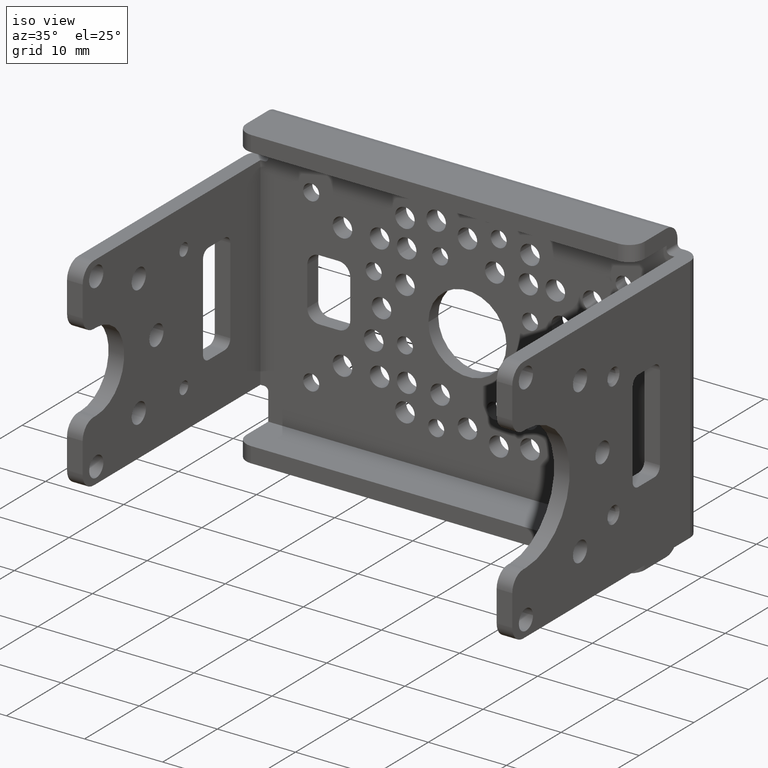
[diagram: clean part render]
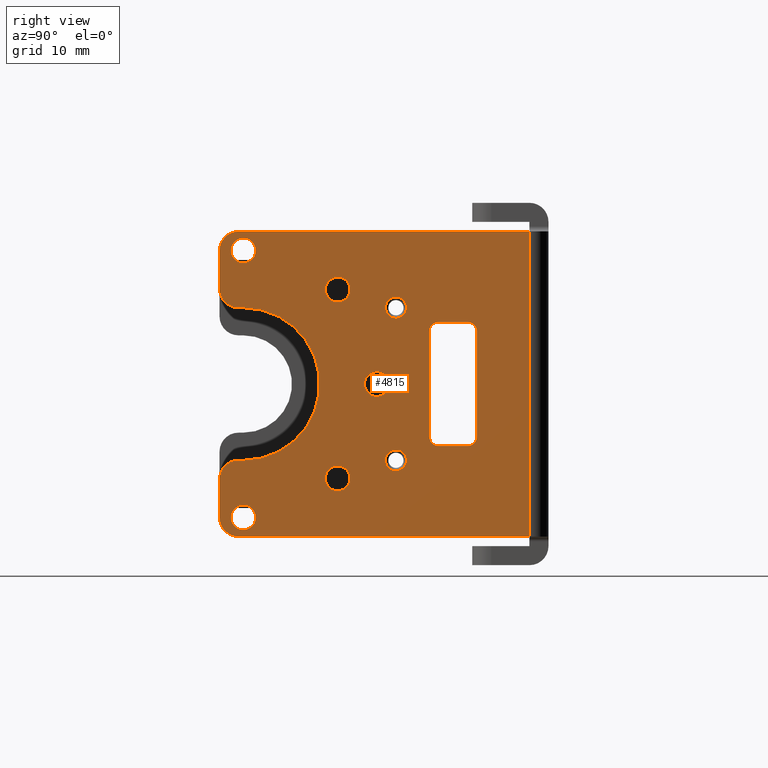
[diagram: tour spotlight — one face highlighted and labeled with its STEP entity id]
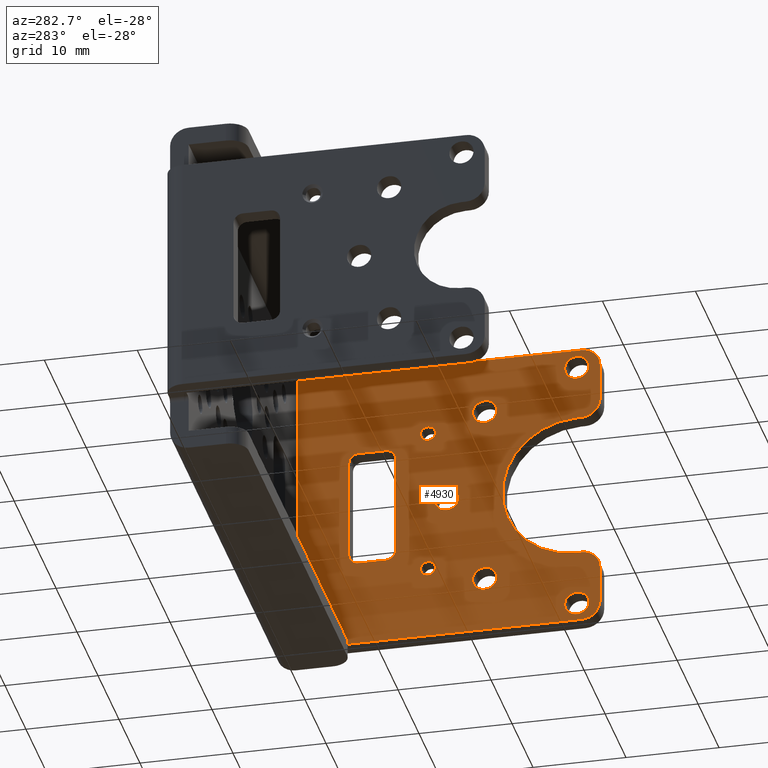
[diagram: tour spotlight — one face highlighted and labeled with its STEP entity id]
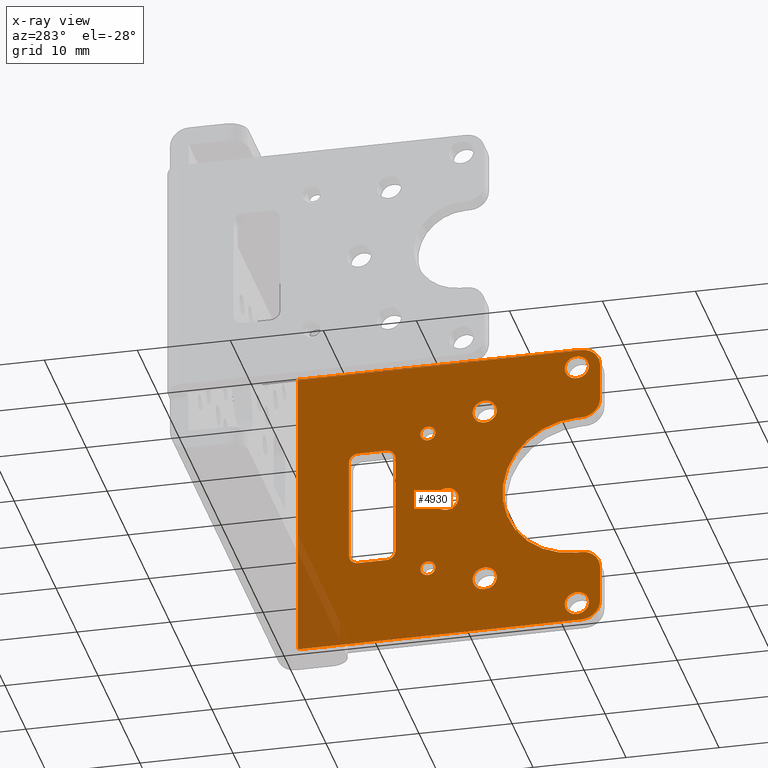
[diagram: x-ray of the same camera — body ghosted, this tour face saturated]
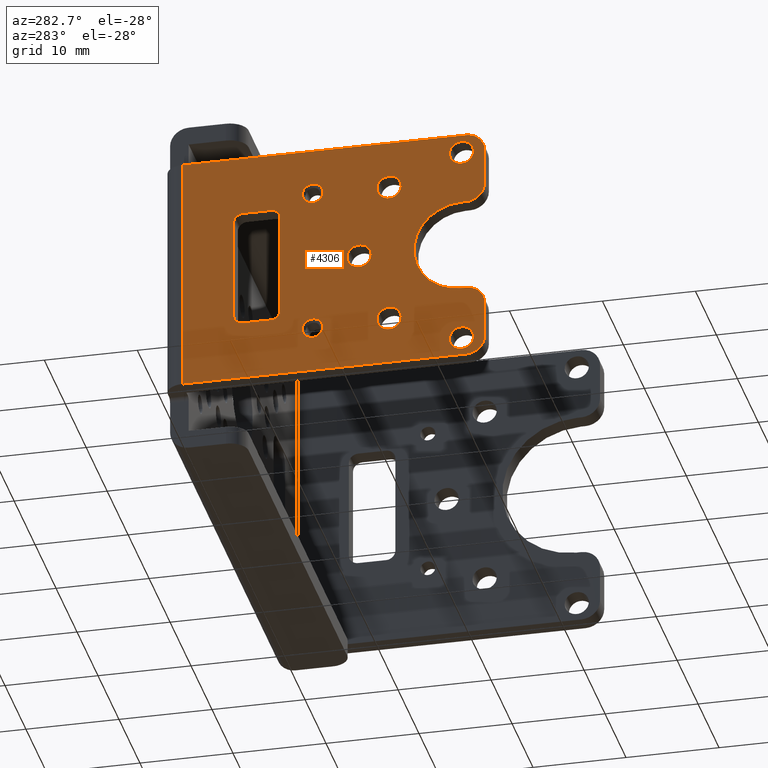
[diagram: tour spotlight — one face highlighted and labeled with its STEP entity id]
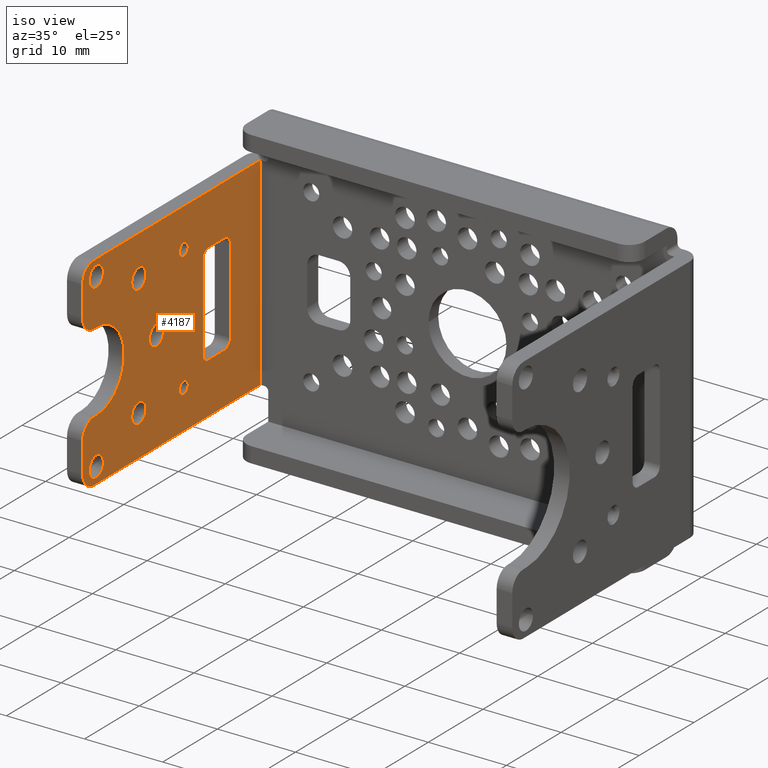
[diagram: tour spotlight — one face highlighted and labeled with its STEP entity id]
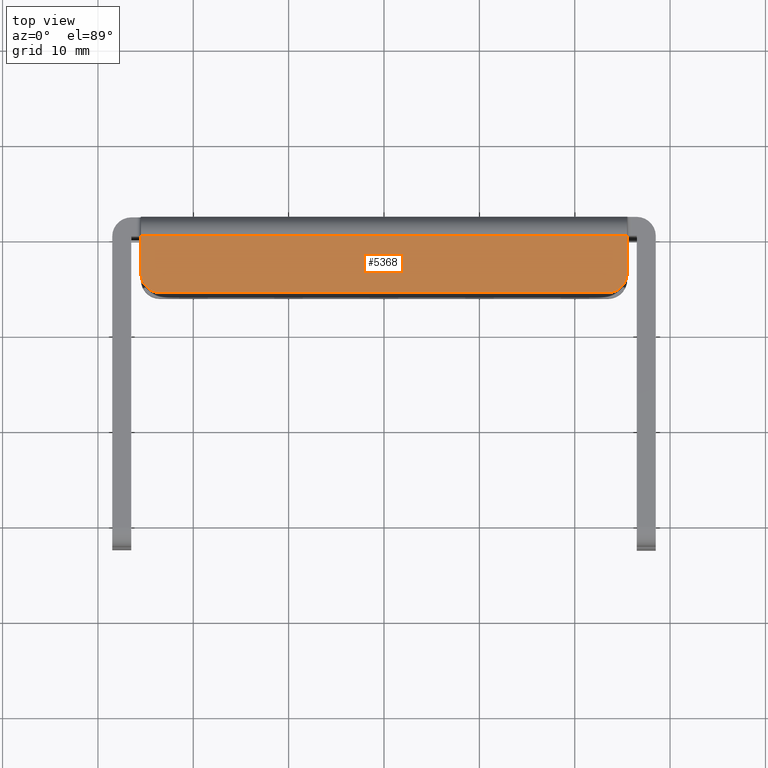
[diagram: tour spotlight — one face highlighted and labeled with its STEP entity id]
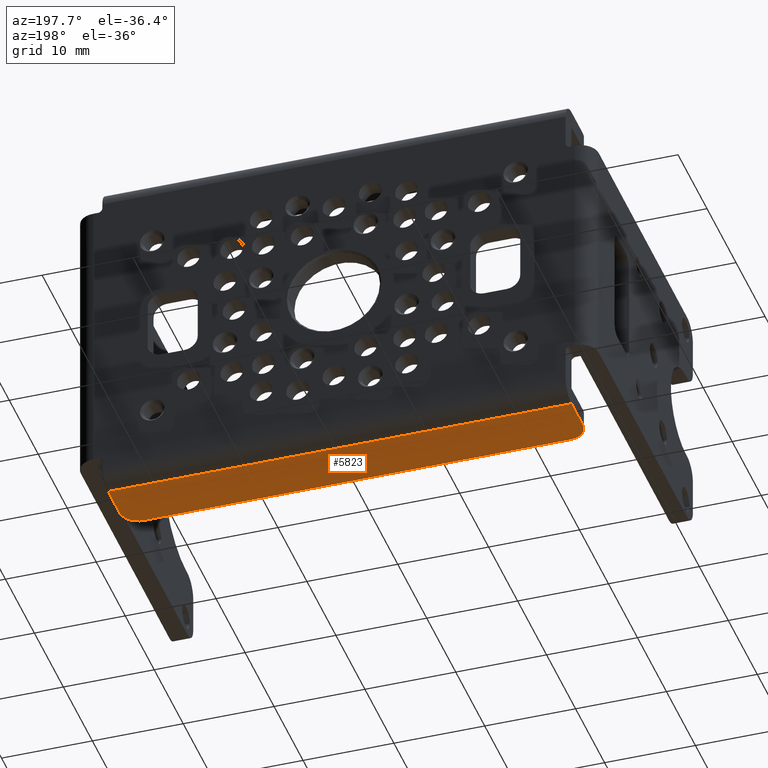
[diagram: tour spotlight — one face highlighted and labeled with its STEP entity id]
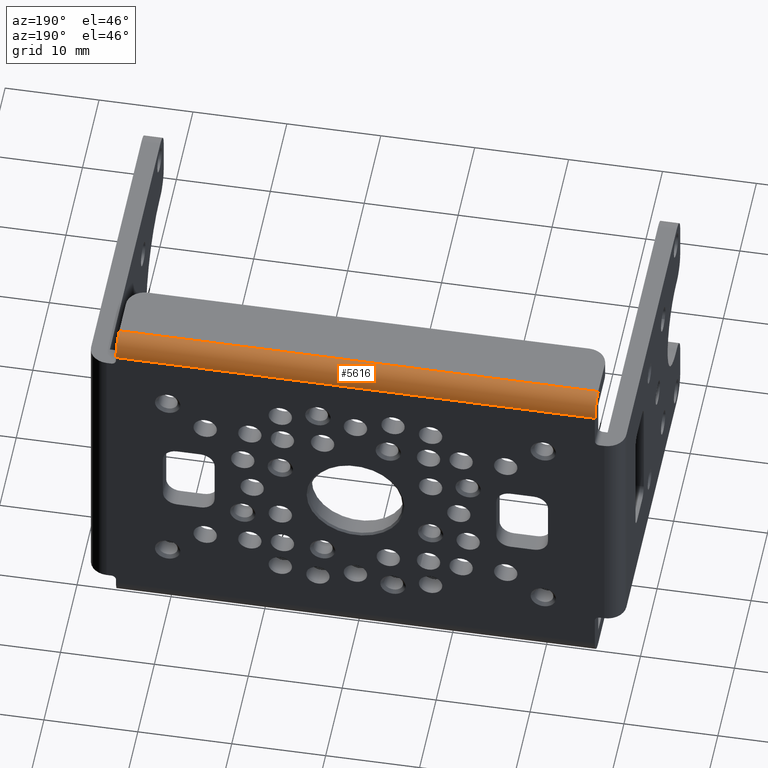
[diagram: tour spotlight — one face highlighted and labeled with its STEP entity id]
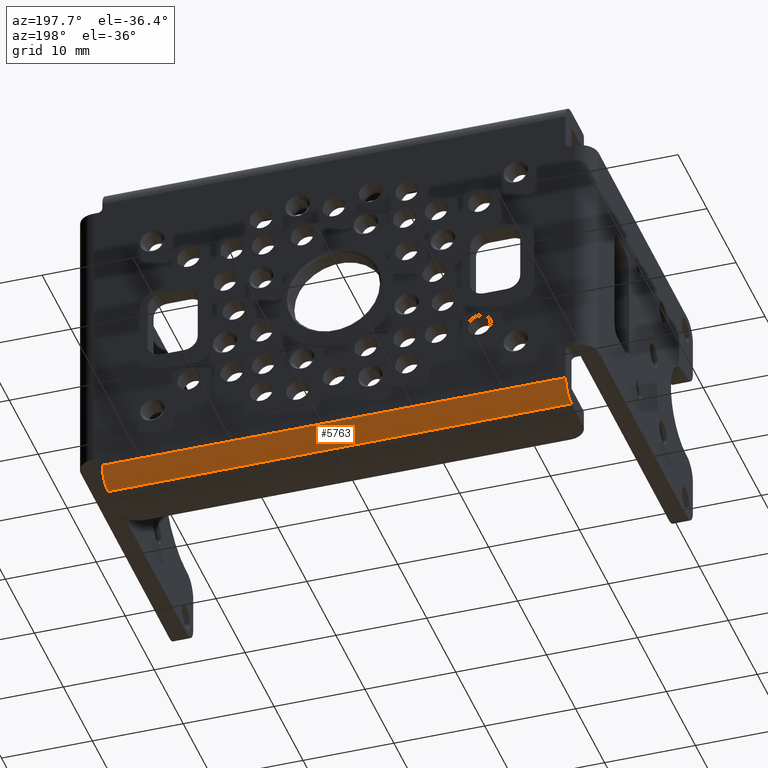
[diagram: tour spotlight — one face highlighted and labeled with its STEP entity id]
A machine part: a face-by-face anatomy tour. The part has 274 B-rep faces; the first image is the clean iso view, then the 8 largest visible faces are spotlighted one at a time (largest first), each with its STEP entity span.

Face 1 — right view, entity #4815. In plain terms, the highlighted planar face has unit normal (-1, 0, 0).
Definition (entity closure, byte-faithful):
#1255=DIRECTION('',(0.E0,-1.E0,0.E0));
#1256=VECTOR('',#1255,3.05E1);
#1257=CARTESIAN_POINT('',(2.85E1,0.E0,-1.6E1));
#1258=LINE('',#1257,#1256);
#1267=CARTESIAN_POINT('',(2.85E1,-3.E1,1.4E1));
#1268=DIRECTION('',(-1.E0,0.E0,0.E0));
#1269=DIRECTION('',(0.E0,-1.E0,0.E0));
#1270=AXIS2_PLACEMENT_3D('',#1267,#1268,#1269);
#1272=CARTESIAN_POINT('',(2.85E1,-3.E1,1.4E1));
#1273=DIRECTION('',(-1.E0,0.E0,0.E0));
#1274=DIRECTION('',(0.E0,1.E0,0.E0));
#1275=AXIS2_PLACEMENT_3D('',#1272,#1273,#1274);
#1277=CARTESIAN_POINT('',(2.85E1,-3.E1,-1.4E1));
#1278=DIRECTION('',(-1.E0,0.E0,0.E0));
#1279=DIRECTION('',(0.E0,1.E0,0.E0));
#1280=AXIS2_PLACEMENT_3D('',#1277,#1278,#1279);
#1282=CARTESIAN_POINT('',(2.85E1,-3.E1,-1.4E1));
#1283=DIRECTION('',(-1.E0,0.E0,0.E0));
#1284=DIRECTION('',(0.E0,-1.E0,0.E0));
#1285=AXIS2_PLACEMENT_3D('',#1282,#1283,#1284);
#1287=CARTESIAN_POINT('',(2.85E1,-2.010050506339E1,-9.899494936612E0));
#1288=DIRECTION('',(-1.E0,0.E0,0.E0));
#1289=DIRECTION('',(0.E0,7.071067811865E-1,7.071067811865E-1));
#1290=AXIS2_PLACEMENT_3D('',#1287,#1288,#1289);
#1292=CARTESIAN_POINT('',(2.85E1,-2.010050506339E1,-9.899494936612E0));
#1293=DIRECTION('',(-1.E0,0.E0,0.E0));
#1294=DIRECTION('',(0.E0,-7.071067811865E-1,-7.071067811865E-1));
#1295=AXIS2_PLACEMENT_3D('',#1292,#1293,#1294);
#1297=CARTESIAN_POINT('',(2.85E1,-1.6E1,0.E0));
#1298=DIRECTION('',(-1.E0,0.E0,0.E0));
#1299=DIRECTION('',(0.E0,0.E0,1.E0));
#1300=AXIS2_PLACEMENT_3D('',#1297,#1298,#1299);
#1302=CARTESIAN_POINT('',(2.85E1,-1.6E1,0.E0));
#1303=DIRECTION('',(-1.E0,0.E0,0.E0));
#1304=DIRECTION('',(0.E0,0.E0,-1.E0));
#1305=AXIS2_PLACEMENT_3D('',#1302,#1303,#1304);
#1307=CARTESIAN_POINT('',(2.85E1,-2.010050506339E1,9.899494936612E0));
#1308=DIRECTION('',(-1.E0,0.E0,0.E0));
#1309=DIRECTION('',(0.E0,-7.071067811866E-1,7.071067811865E-1));
#1310=AXIS2_PLACEMENT_3D('',#1307,#1308,#1309);
#1312=CARTESIAN_POINT('',(2.85E1,-2.010050506339E1,9.899494936612E0));
#1313=DIRECTION('',(-1.E0,0.E0,0.E0));
#1314=DIRECTION('',(0.E0,7.071067811865E-1,-7.071067811865E-1));
#1315=AXIS2_PLACEMENT_3D('',#1312,#1313,#1314);
#1317=DIRECTION('',(0.E0,0.E0,1.E0));
#1318=VECTOR('',#1317,1.1E1);
#1319=CARTESIAN_POINT('',(2.85E1,-1.05E1,-5.5E0));
#1320=LINE('',#1319,#1318);
#1321=DIRECTION('',(0.E0,-1.E0,0.E0));
#1322=VECTOR('',#1321,3.E0);
#1323=CARTESIAN_POINT('',(2.85E1,-6.5E0,-6.5E0));
#1324=LINE('',#1323,#1322);
#1325=DIRECTION('',(0.E0,0.E0,-1.E0));
#1326=VECTOR('',#1325,1.1E1);
#1327=CARTESIAN_POINT('',(2.85E1,-5.5E0,5.5E0));
#1328=LINE('',#1327,#1326);
#1329=DIRECTION('',(0.E0,1.E0,0.E0));
#1330=VECTOR('',#1329,3.E0);
#1331=CARTESIAN_POINT('',(2.85E1,-9.5E0,6.5E0));
#1332=LINE('',#1331,#1330);
#1333=CARTESIAN_POINT('',(2.85E1,-3.05E1,-1.E1));
#1334=DIRECTION('',(1.E0,0.E0,0.E0));
#1335=DIRECTION('',(0.E0,0.E0,1.E0));
#1336=AXIS2_PLACEMENT_3D('',#1333,#1334,#1335);
#1338=DIRECTION('',(0.E0,1.E0,0.E0));
#1339=VECTOR('',#1338,5.E-1);
#1340=CARTESIAN_POINT('',(2.85E1,-3.05E1,-8.E0));
#1341=LINE('',#1340,#1339);
#1342=CARTESIAN_POINT('',(2.85E1,-3.E1,0.E0));
#1343=DIRECTION('',(1.E0,0.E0,0.E0));
#1344=DIRECTION('',(0.E0,0.E0,-1.E0));
#1345=AXIS2_PLACEMENT_3D('',#1342,#1343,#1344);
#1347=DIRECTION('',(0.E0,1.E0,0.E0));
#1348=VECTOR('',#1347,5.E-1);
#1349=CARTESIAN_POINT('',(2.85E1,-3.05E1,8.E0));
#1350=LINE('',#1349,#1348);
#1351=CARTESIAN_POINT('',(2.85E1,-3.05E1,1.E1));
#1352=DIRECTION('',(1.E0,0.E0,0.E0));
#1353=DIRECTION('',(0.E0,-1.E0,0.E0));
#1354=AXIS2_PLACEMENT_3D('',#1351,#1352,#1353);
#1356=CARTESIAN_POINT('',(2.85E1,-3.05E1,1.4E1));
#1357=DIRECTION('',(1.E0,0.E0,0.E0));
#1358=DIRECTION('',(0.E0,0.E0,1.E0));
#1359=AXIS2_PLACEMENT_3D('',#1356,#1357,#1358);
#1361=DIRECTION('',(0.E0,0.E0,1.E0));
#1362=VECTOR('',#1361,3.2E1);
#1363=CARTESIAN_POINT('',(2.85E1,0.E0,-1.6E1));
#1364=LINE('',#1363,#1362);
#1365=CARTESIAN_POINT('',(2.85E1,-3.05E1,-1.4E1));
#1366=DIRECTION('',(1.E0,0.E0,0.E0));
#1367=DIRECTION('',(0.E0,-1.E0,0.E0));
#1368=AXIS2_PLACEMENT_3D('',#1365,#1366,#1367);
#1370=CARTESIAN_POINT('',(2.85E1,-1.4E1,-8.E0));
#1371=DIRECTION('',(1.E0,0.E0,0.E0));
#1372=DIRECTION('',(0.E0,-1.E0,0.E0));
#1373=AXIS2_PLACEMENT_3D('',#1370,#1371,#1372);
#1375=CARTESIAN_POINT('',(2.85E1,-1.4E1,-8.E0));
#1376=DIRECTION('',(1.E0,0.E0,0.E0));
#1377=DIRECTION('',(0.E0,1.E0,0.E0));
#1378=AXIS2_PLACEMENT_3D('',#1375,#1376,#1377);
#1380=CARTESIAN_POINT('',(2.85E1,-1.4E1,8.E0));
#1381=DIRECTION('',(-1.E0,0.E0,0.E0));
#1382=DIRECTION('',(0.E0,-1.E0,0.E0));
#1383=AXIS2_PLACEMENT_3D('',#1380,#1381,#1382);
#1385=CARTESIAN_POINT('',(2.85E1,-1.4E1,8.E0));
#1386=DIRECTION('',(-1.E0,0.E0,0.E0));
#1387=DIRECTION('',(0.E0,1.E0,0.E0));
#1388=AXIS2_PLACEMENT_3D('',#1385,#1386,#1387);
#1566=CARTESIAN_POINT('',(2.85E1,-9.5E0,-5.5E0));
#1567=DIRECTION('',(-1.E0,0.E0,0.E0));
#1568=DIRECTION('',(0.E0,0.E0,-1.E0));
#1569=AXIS2_PLACEMENT_3D('',#1566,#1567,#1568);
#1584=CARTESIAN_POINT('',(2.85E1,-9.5E0,5.5E0));
#1585=DIRECTION('',(-1.E0,0.E0,0.E0));
#1586=DIRECTION('',(0.E0,-1.E0,0.E0));
#1587=AXIS2_PLACEMENT_3D('',#1584,#1585,#1586);
#1602=CARTESIAN_POINT('',(2.85E1,-6.5E0,5.5E0));
#1603=DIRECTION('',(-1.E0,0.E0,0.E0));
#1604=DIRECTION('',(0.E0,0.E0,1.E0));
#1605=AXIS2_PLACEMENT_3D('',#1602,#1603,#1604);
#1620=CARTESIAN_POINT('',(2.85E1,-6.5E0,-5.5E0));
#1621=DIRECTION('',(-1.E0,0.E0,0.E0));
#1622=DIRECTION('',(0.E0,1.E0,0.E0));
#1623=AXIS2_PLACEMENT_3D('',#1620,#1621,#1622);
#1625=DIRECTION('',(0.E0,-1.E0,0.E0));
#1626=VECTOR('',#1625,3.05E1);
#1627=CARTESIAN_POINT('',(2.85E1,0.E0,1.6E1));
#1628=LINE('',#1627,#1626);
#1645=DIRECTION('',(0.E0,0.E0,1.E0));
#1646=VECTOR('',#1645,4.E0);
#1647=CARTESIAN_POINT('',(2.85E1,-3.25E1,1.E1));
#1648=LINE('',#1647,#1646);
#1677=DIRECTION('',(0.E0,0.E0,1.E0));
#1678=VECTOR('',#1677,4.E0);
#1679=CARTESIAN_POINT('',(2.85E1,-3.25E1,-1.4E1));
#1680=LINE('',#1679,#1678);
#2955=CARTESIAN_POINT('',(2.85E1,0.E0,-1.6E1));
#2956=CARTESIAN_POINT('',(2.85E1,0.E0,1.6E1));
#2957=VERTEX_POINT('',#2955);
#2958=VERTEX_POINT('',#2956);
#2987=CARTESIAN_POINT('',(2.85E1,-3.13E1,1.4E1));
#2988=CARTESIAN_POINT('',(2.85E1,-2.87E1,1.4E1));
#2989=VERTEX_POINT('',#2987);
#2990=VERTEX_POINT('',#2988);
#3075=CARTESIAN_POINT('',(2.85E1,-3.25E1,-1.4E1));
#3076=CARTESIAN_POINT('',(2.85E1,-3.05E1,-1.6E1));
#3077=VERTEX_POINT('',#3075);
#3078=VERTEX_POINT('',#3076);
#3083=CARTESIAN_POINT('',(2.85E1,-3.05E1,1.6E1));
#3084=VERTEX_POINT('',#3083);
#3120=CARTESIAN_POINT('',(2.85E1,-9.5E0,6.5E0));
#3122=VERTEX_POINT('',#3120);
#3124=CARTESIAN_POINT('',(2.85E1,-1.05E1,5.5E0));
#3126=VERTEX_POINT('',#3124);
#3128=CARTESIAN_POINT('',(2.85E1,-1.05E1,-5.5E0));
#3130=VERTEX_POINT('',#3128);
#3132=CARTESIAN_POINT('',(2.85E1,-9.5E0,-6.5E0));
#3134=VERTEX_POINT('',#3132);
#3136=CARTESIAN_POINT('',(2.85E1,-6.5E0,-6.5E0));
#3138=VERTEX_POINT('',#3136);
#3140=CARTESIAN_POINT('',(2.85E1,-5.5E0,-5.5E0));
#3142=VERTEX_POINT('',#3140);
#3144=CARTESIAN_POINT('',(2.85E1,-5.5E0,5.5E0));
#3146=VERTEX_POINT('',#3144);
#3148=CARTESIAN_POINT('',(2.85E1,-6.5E0,6.5E0));
#3150=VERTEX_POINT('',#3148);
#3203=CARTESIAN_POINT('',(2.85E1,-3.25E1,1.4E1));
#3204=VERTEX_POINT('',#3203);
#3211=CARTESIAN_POINT('',(2.85E1,-3.25E1,-1.E1));
#3212=VERTEX_POINT('',#3211);
#3213=CARTESIAN_POINT('',(2.85E1,-3.25E1,1.E1));
#3214=VERTEX_POINT('',#3213);
#3219=CARTESIAN_POINT('',(2.85E1,-3.E1,-8.E0));
#3220=CARTESIAN_POINT('',(2.85E1,-3.E1,8.E0));
#3221=VERTEX_POINT('',#3219);
#3222=VERTEX_POINT('',#3220);
#3225=CARTESIAN_POINT('',(2.85E1,-3.05E1,8.E0));
#3226=VERTEX_POINT('',#3225);
#3229=CARTESIAN_POINT('',(2.85E1,-3.05E1,-8.E0));
#3230=VERTEX_POINT('',#3229);
#3295=CARTESIAN_POINT('',(2.85E1,-2.87E1,-1.4E1));
#3296=CARTESIAN_POINT('',(2.85E1,-3.13E1,-1.4E1));
#3297=VERTEX_POINT('',#3295);
#3298=VERTEX_POINT('',#3296);
#3303=CARTESIAN_POINT('',(2.85E1,-1.918126624785E1,-8.980256121069E0));
#3304=CARTESIAN_POINT('',(2.85E1,-2.101974387893E1,-1.081873375215E1));
#3305=VERTEX_POINT('',#3303);
#3306=VERTEX_POINT('',#3304);
#3311=CARTESIAN_POINT('',(2.85E1,-2.101974387893E1,1.081873375215E1));
#3312=CARTESIAN_POINT('',(2.85E1,-1.918126624785E1,8.980256121069E0));
#3313=VERTEX_POINT('',#3311);
#3314=VERTEX_POINT('',#3312);
#3319=CARTESIAN_POINT('',(2.85E1,-1.6E1,1.3E0));
#3320=CARTESIAN_POINT('',(2.85E1,-1.6E1,-1.3E0));
#3321=VERTEX_POINT('',#3319);
#3322=VERTEX_POINT('',#3320);
#3359=CARTESIAN_POINT('',(2.85E1,-1.51E1,-8.E0));
#3360=CARTESIAN_POINT('',(2.85E1,-1.29E1,-8.E0));
#3361=VERTEX_POINT('',#3359);
#3362=VERTEX_POINT('',#3360);
#3371=CARTESIAN_POINT('',(2.85E1,-1.51E1,8.E0));
#3372=VERTEX_POINT('',#3371);
#3373=CARTESIAN_POINT('',(2.85E1,-1.29E1,8.E0));
#3374=VERTEX_POINT('',#3373);
#4726=CARTESIAN_POINT('',(2.85E1,0.E0,-1.6E1));
#4727=DIRECTION('',(-1.E0,0.E0,0.E0));
#4728=DIRECTION('',(0.E0,-1.E0,0.E0));
#4729=AXIS2_PLACEMENT_3D('',#4726,#4727,#4728);
#4730=PLANE('',#4729);
#4732=ORIENTED_EDGE('',*,*,#4731,.T.);
#4734=ORIENTED_EDGE('',*,*,#4733,.F.);
#4736=ORIENTED_EDGE('',*,*,#4735,.T.);
#4738=ORIENTED_EDGE('',*,*,#4737,.T.);
#4740=ORIENTED_EDGE('',*,*,#4739,.F.);
#4742=ORIENTED_EDGE('',*,*,#4741,.F.);
#4744=ORIENTED_EDGE('',*,*,#4743,.T.);
#4746=ORIENTED_EDGE('',*,*,#4745,.F.);
#4748=ORIENTED_EDGE('',*,*,#4747,.F.);
#4750=ORIENTED_EDGE('',*,*,#4749,.F.);
#4751=ORIENTED_EDGE('',*,*,#4703,.T.);
#4752=ORIENTED_EDGE('',*,*,#4716,.F.);
#4753=EDGE_LOOP('',(#4732,#4734,#4736,#4738,#4740,#4742,#4744,#4746,#4748,#4750,
#4751,#4752));
#4754=FACE_OUTER_BOUND('',#4753,.F.);
#4756=ORIENTED_EDGE('',*,*,#4755,.F.);
#4758=ORIENTED_EDGE('',*,*,#4757,.F.);
#4759=EDGE_LOOP('',(#4756,#4758));
#4760=FACE_BOUND('',#4759,.F.);
#4762=ORIENTED_EDGE('',*,*,#4761,.F.);
#4764=ORIENTED_EDGE('',*,*,#4763,.F.);
#4765=EDGE_LOOP('',(#4762,#4764));
#4766=FACE_BOUND('',#4765,.F.);
#4768=ORIENTED_EDGE('',*,*,#4767,.F.);
#4770=ORIENTED_EDGE('',*,*,#4769,.F.);
#4771=EDGE_LOOP('',(#4768,#4770));
#4772=FACE_BOUND('',#4771,.F.);
#4774=ORIENTED_EDGE('',*,*,#4773,.F.);
#4776=ORIENTED_EDGE('',*,*,#4775,.F.);
#4777=EDGE_LOOP('',(#4774,#4776));
#4778=FACE_BOUND('',#4777,.F.);
#4780=ORIENTED_EDGE('',*,*,#4779,.F.);
#4782=ORIENTED_EDGE('',*,*,#4781,.F.);
#4784=ORIENTED_EDGE('',*,*,#4783,.F.);
#4786=ORIENTED_EDGE('',*,*,#4785,.F.);
#4788=ORIENTED_EDGE('',*,*,#4787,.F.);
#4790=ORIENTED_EDGE('',*,*,#4789,.F.);
#4792=ORIENTED_EDGE('',*,*,#4791,.F.);
#4794=ORIENTED_EDGE('',*,*,#4793,.F.);
#4795=EDGE_LOOP('',(#4780,#4782,#4784,#4786,#4788,#4790,#4792,#4794));
#4796=FACE_BOUND('',#4795,.F.);
#4798=ORIENTED_EDGE('',*,*,#4797,.F.);
#4800=ORIENTED_EDGE('',*,*,#4799,.F.);
#4801=EDGE_LOOP('',(#4798,#4800));
#4802=FACE_BOUND('',#4801,.F.);
#4804=ORIENTED_EDGE('',*,*,#4803,.T.);
#4806=ORIENTED_EDGE('',*,*,#4805,.T.);
#4807=EDGE_LOOP('',(#4804,#4806));
#4808=FACE_BOUND('',#4807,.F.);
#4810=ORIENTED_EDGE('',*,*,#4809,.F.);
#4812=ORIENTED_EDGE('',*,*,#4811,.F.);
#4813=EDGE_LOOP('',(#4810,#4812));
#4814=FACE_BOUND('',#4813,.F.);
#4815=ADVANCED_FACE('',(#4754,#4760,#4766,#4772,#4778,#4796,#4802,#4808,#4814),
#4730,.F.);
#1271=CIRCLE('',#1270,1.3E0);
#1276=CIRCLE('',#1275,1.3E0);
#1281=CIRCLE('',#1280,1.3E0);
#1286=CIRCLE('',#1285,1.3E0);
#1291=CIRCLE('',#1290,1.3E0);
#1296=CIRCLE('',#1295,1.3E0);
#1301=CIRCLE('',#1300,1.3E0);
#1306=CIRCLE('',#1305,1.3E0);
#1311=CIRCLE('',#1310,1.3E0);
#1316=CIRCLE('',#1315,1.3E0);
#1337=CIRCLE('',#1336,2.E0);
#1346=CIRCLE('',#1345,8.E0);
#1355=CIRCLE('',#1354,2.E0);
#1360=CIRCLE('',#1359,2.E0);
#1369=CIRCLE('',#1368,2.E0);
#1374=CIRCLE('',#1373,1.1E0);
#1379=CIRCLE('',#1378,1.1E0);
#1384=CIRCLE('',#1383,1.1E0);
#1389=CIRCLE('',#1388,1.1E0);
#1570=CIRCLE('',#1569,1.E0);
#1588=CIRCLE('',#1587,1.E0);
#1606=CIRCLE('',#1605,1.E0);
#1624=CIRCLE('',#1623,1.E0);
#4703=EDGE_CURVE('',#2957,#3078,#1258,.T.);
#4716=EDGE_CURVE('',#3077,#3078,#1369,.T.);
#4731=EDGE_CURVE('',#3077,#3212,#1680,.T.);
#4733=EDGE_CURVE('',#3230,#3212,#1337,.T.);
#4735=EDGE_CURVE('',#3230,#3221,#1341,.T.);
#4737=EDGE_CURVE('',#3221,#3222,#1346,.T.);
#4739=EDGE_CURVE('',#3226,#3222,#1350,.T.);
#4741=EDGE_CURVE('',#3214,#3226,#1355,.T.);
#4743=EDGE_CURVE('',#3214,#3204,#1648,.T.);
#4745=EDGE_CURVE('',#3084,#3204,#1360,.T.);
#4747=EDGE_CURVE('',#2958,#3084,#1628,.T.);
#4749=EDGE_CURVE('',#2957,#2958,#1364,.T.);
#4755=EDGE_CURVE('',#3297,#3298,#1281,.T.);
#4757=EDGE_CURVE('',#3298,#3297,#1286,.T.);
#4761=EDGE_CURVE('',#3305,#3306,#1291,.T.);
#4763=EDGE_CURVE('',#3306,#3305,#1296,.T.);
#4767=EDGE_CURVE('',#3321,#3322,#1301,.T.);
#4769=EDGE_CURVE('',#3322,#3321,#1306,.T.);
#4773=EDGE_CURVE('',#3313,#3314,#1311,.T.);
#4775=EDGE_CURVE('',#3314,#3313,#1316,.T.);
#4779=EDGE_CURVE('',#3130,#3126,#1320,.T.);
#4781=EDGE_CURVE('',#3134,#3130,#1570,.T.);
#4783=EDGE_CURVE('',#3138,#3134,#1324,.T.);
#4785=EDGE_CURVE('',#3142,#3138,#1624,.T.);
#4787=EDGE_CURVE('',#3146,#3142,#1328,.T.);
#4789=EDGE_CURVE('',#3150,#3146,#1606,.T.);
#4791=EDGE_CURVE('',#3122,#3150,#1332,.T.);
#4793=EDGE_CURVE('',#3126,#3122,#1588,.T.);
#4797=EDGE_CURVE('',#2989,#2990,#1271,.T.);
#4799=EDGE_CURVE('',#2990,#2989,#1276,.T.);
#4803=EDGE_CURVE('',#3361,#3362,#1374,.T.);
#4805=EDGE_CURVE('',#3362,#3361,#1379,.T.);
#4809=EDGE_CURVE('',#3372,#3374,#1384,.T.);
#4811=EDGE_CURVE('',#3374,#3372,#1389,.T.);

Face 2 — auxiliary view, entity #4930. An x-ray twin of the same camera follows (body ghosted, this face saturated) — the face is partly hidden behind the body. In plain terms, the highlighted planar face has unit normal (-1, 0, 0).
Definition (entity closure, byte-faithful):
#1263=DIRECTION('',(0.E0,-1.E0,0.E0));
#1264=VECTOR('',#1263,3.05E1);
#1265=CARTESIAN_POINT('',(2.65E1,0.E0,-1.6E1));
#1266=LINE('',#1265,#1264);
#1398=CARTESIAN_POINT('',(2.65E1,-3.E1,1.4E1));
#1399=DIRECTION('',(-1.E0,0.E0,0.E0));
#1400=DIRECTION('',(0.E0,-1.E0,0.E0));
#1401=AXIS2_PLACEMENT_3D('',#1398,#1399,#1400);
#1403=CARTESIAN_POINT('',(2.65E1,-3.E1,1.4E1));
#1404=DIRECTION('',(-1.E0,0.E0,0.E0));
#1405=DIRECTION('',(0.E0,1.E0,0.E0));
#1406=AXIS2_PLACEMENT_3D('',#1403,#1404,#1405);
#1408=CARTESIAN_POINT('',(2.65E1,-3.E1,-1.4E1));
#1409=DIRECTION('',(-1.E0,0.E0,0.E0));
#1410=DIRECTION('',(0.E0,1.E0,0.E0));
#1411=AXIS2_PLACEMENT_3D('',#1408,#1409,#1410);
#1413=CARTESIAN_POINT('',(2.65E1,-3.E1,-1.4E1));
#1414=DIRECTION('',(-1.E0,0.E0,0.E0));
#1415=DIRECTION('',(0.E0,-1.E0,0.E0));
#1416=AXIS2_PLACEMENT_3D('',#1413,#1414,#1415);
#1418=CARTESIAN_POINT('',(2.65E1,-2.010050506339E1,-9.899494936612E0));
#1419=DIRECTION('',(-1.E0,0.E0,0.E0));
#1420=DIRECTION('',(0.E0,7.071067811865E-1,7.071067811865E-1));
#1421=AXIS2_PLACEMENT_3D('',#1418,#1419,#1420);
#1423=CARTESIAN_POINT('',(2.65E1,-2.010050506339E1,-9.899494936612E0));
#1424=DIRECTION('',(-1.E0,0.E0,0.E0));
#1425=DIRECTION('',(0.E0,-7.071067811865E-1,-7.071067811865E-1));
#1426=AXIS2_PLACEMENT_3D('',#1423,#1424,#1425);
#1428=CARTESIAN_POINT('',(2.65E1,-1.6E1,0.E0));
#1429=DIRECTION('',(-1.E0,0.E0,0.E0));
#1430=DIRECTION('',(0.E0,0.E0,1.E0));
#1431=AXIS2_PLACEMENT_3D('',#1428,#1429,#1430);
#1433=CARTESIAN_POINT('',(2.65E1,-1.6E1,0.E0));
#1434=DIRECTION('',(-1.E0,0.E0,0.E0));
#1435=DIRECTION('',(0.E0,0.E0,-1.E0));
#1436=AXIS2_PLACEMENT_3D('',#1433,#1434,#1435);
#1438=CARTESIAN_POINT('',(2.65E1,-2.010050506339E1,9.899494936612E0));
#1439=DIRECTION('',(-1.E0,0.E0,0.E0));
#1440=DIRECTION('',(0.E0,-7.071067811866E-1,7.071067811865E-1));
#1441=AXIS2_PLACEMENT_3D('',#1438,#1439,#1440);
#1443=CARTESIAN_POINT('',(2.65E1,-2.010050506339E1,9.899494936612E0));
#1444=DIRECTION('',(-1.E0,0.E0,0.E0));
#1445=DIRECTION('',(0.E0,7.071067811865E-1,-7.071067811865E-1));
#1446=AXIS2_PLACEMENT_3D('',#1443,#1444,#1445);
#1448=DIRECTION('',(0.E0,-1.E0,0.E0));
#1449=VECTOR('',#1448,3.E0);
#1450=CARTESIAN_POINT('',(2.65E1,-6.5E0,-6.5E0));
#1451=LINE('',#1450,#1449);
#1452=DIRECTION('',(0.E0,0.E0,1.E0));
#1453=VECTOR('',#1452,1.1E1);
#1454=CARTESIAN_POINT('',(2.65E1,-1.05E1,-5.5E0));
#1455=LINE('',#1454,#1453);
#1456=DIRECTION('',(0.E0,1.E0,0.E0));
#1457=VECTOR('',#1456,3.E0);
#1458=CARTESIAN_POINT('',(2.65E1,-9.5E0,6.5E0));
#1459=LINE('',#1458,#1457);
#1460=DIRECTION('',(0.E0,0.E0,-1.E0));
#1461=VECTOR('',#1460,1.1E1);
#1462=CARTESIAN_POINT('',(2.65E1,-5.5E0,5.5E0));
#1463=LINE('',#1462,#1461);
#1464=DIRECTION('',(0.E0,0.E0,1.E0));
#1465=VECTOR('',#1464,3.2E1);
#1466=CARTESIAN_POINT('',(2.65E1,0.E0,-1.6E1));
#1467=LINE('',#1466,#1465);
#1468=CARTESIAN_POINT('',(2.65E1,-3.05E1,1.4E1));
#1469=DIRECTION('',(-1.E0,0.E0,0.E0));
#1470=DIRECTION('',(0.E0,-1.E0,0.E0));
#1471=AXIS2_PLACEMENT_3D('',#1468,#1469,#1470);
#1473=CARTESIAN_POINT('',(2.65E1,-3.05E1,1.E1));
#1474=DIRECTION('',(-1.E0,0.E0,0.E0));
#1475=DIRECTION('',(0.E0,0.E0,-1.E0));
#1476=AXIS2_PLACEMENT_3D('',#1473,#1474,#1475);
#1478=DIRECTION('',(0.E0,1.E0,0.E0));
#1479=VECTOR('',#1478,5.E-1);
#1480=CARTESIAN_POINT('',(2.65E1,-3.05E1,8.E0));
#1481=LINE('',#1480,#1479);
#1482=CARTESIAN_POINT('',(2.65E1,-3.E1,0.E0));
#1483=DIRECTION('',(1.E0,0.E0,0.E0));
#1484=DIRECTION('',(0.E0,0.E0,-1.E0));
#1485=AXIS2_PLACEMENT_3D('',#1482,#1483,#1484);
#1487=DIRECTION('',(0.E0,1.E0,0.E0));
#1488=VECTOR('',#1487,5.E-1);
#1489=CARTESIAN_POINT('',(2.65E1,-3.05E1,-8.E0));
#1490=LINE('',#1489,#1488);
#1491=CARTESIAN_POINT('',(2.65E1,-3.05E1,-1.E1));
#1492=DIRECTION('',(-1.E0,0.E0,0.E0));
#1493=DIRECTION('',(0.E0,-1.E0,0.E0));
#1494=AXIS2_PLACEMENT_3D('',#1491,#1492,#1493);
#1496=CARTESIAN_POINT('',(2.65E1,-3.05E1,-1.4E1));
#1497=DIRECTION('',(-1.E0,0.E0,0.E0));
#1498=DIRECTION('',(0.E0,0.E0,-1.E0));
#1499=AXIS2_PLACEMENT_3D('',#1496,#1497,#1498);
#1501=CARTESIAN_POINT('',(2.65E1,-1.4E1,-8.E0));
#1502=DIRECTION('',(1.E0,0.E0,0.E0));
#1503=DIRECTION('',(0.E0,-1.E0,0.E0));
#1504=AXIS2_PLACEMENT_3D('',#1501,#1502,#1503);
#1506=CARTESIAN_POINT('',(2.65E1,-1.4E1,-8.E0));
#1507=DIRECTION('',(1.E0,0.E0,0.E0));
#1508=DIRECTION('',(0.E0,1.E0,0.E0));
#1509=AXIS2_PLACEMENT_3D('',#1506,#1507,#1508);
#1511=CARTESIAN_POINT('',(2.65E1,-1.4E1,8.E0));
#1512=DIRECTION('',(-1.E0,0.E0,0.E0));
#1513=DIRECTION('',(0.E0,-1.E0,0.E0));
#1514=AXIS2_PLACEMENT_3D('',#1511,#1512,#1513);
#1516=CARTESIAN_POINT('',(2.65E1,-1.4E1,8.E0));
#1517=DIRECTION('',(-1.E0,0.E0,0.E0));
#1518=DIRECTION('',(0.E0,1.E0,0.E0));
#1519=AXIS2_PLACEMENT_3D('',#1516,#1517,#1518);
#1561=CARTESIAN_POINT('',(2.65E1,-9.5E0,-5.5E0));
#1562=DIRECTION('',(1.E0,0.E0,0.E0));
#1563=DIRECTION('',(0.E0,-1.E0,0.E0));
#1564=AXIS2_PLACEMENT_3D('',#1561,#1562,#1563);
#1579=CARTESIAN_POINT('',(2.65E1,-9.5E0,5.5E0));
#1580=DIRECTION('',(1.E0,0.E0,0.E0));
#1581=DIRECTION('',(0.E0,0.E0,1.E0));
#1582=AXIS2_PLACEMENT_3D('',#1579,#1580,#1581);
#1597=CARTESIAN_POINT('',(2.65E1,-6.5E0,5.5E0));
#1598=DIRECTION('',(1.E0,0.E0,0.E0));
#1599=DIRECTION('',(0.E0,1.E0,0.E0));
#1600=AXIS2_PLACEMENT_3D('',#1597,#1598,#1599);
#1615=CARTESIAN_POINT('',(2.65E1,-6.5E0,-5.5E0));
#1616=DIRECTION('',(1.E0,0.E0,0.E0));
#1617=DIRECTION('',(0.E0,0.E0,-1.E0));
#1618=AXIS2_PLACEMENT_3D('',#1615,#1616,#1617);
#1633=DIRECTION('',(0.E0,-1.E0,0.E0));
#1634=VECTOR('',#1633,3.05E1);
#1635=CARTESIAN_POINT('',(2.65E1,0.E0,1.6E1));
#1636=LINE('',#1635,#1634);
#1637=DIRECTION('',(0.E0,0.E0,1.E0));
#1638=VECTOR('',#1637,4.E0);
#1639=CARTESIAN_POINT('',(2.65E1,-3.25E1,1.E1));
#1640=LINE('',#1639,#1638);
#1669=DIRECTION('',(0.E0,0.E0,1.E0));
#1670=VECTOR('',#1669,4.E0);
#1671=CARTESIAN_POINT('',(2.65E1,-3.25E1,-1.4E1));
#1672=LINE('',#1671,#1670);
#2959=CARTESIAN_POINT('',(2.65E1,0.E0,-1.6E1));
#2960=VERTEX_POINT('',#2959);
#2961=CARTESIAN_POINT('',(2.65E1,0.E0,1.6E1));
#2962=VERTEX_POINT('',#2961);
#2991=CARTESIAN_POINT('',(2.65E1,-3.13E1,1.4E1));
#2992=CARTESIAN_POINT('',(2.65E1,-2.87E1,1.4E1));
#2993=VERTEX_POINT('',#2991);
#2994=VERTEX_POINT('',#2992);
#3079=CARTESIAN_POINT('',(2.65E1,-3.05E1,-1.6E1));
#3080=VERTEX_POINT('',#3079);
#3081=CARTESIAN_POINT('',(2.65E1,-3.25E1,-1.4E1));
#3082=VERTEX_POINT('',#3081);
#3085=CARTESIAN_POINT('',(2.65E1,-3.05E1,1.6E1));
#3086=VERTEX_POINT('',#3085);
#3119=CARTESIAN_POINT('',(2.65E1,-9.5E0,6.5E0));
#3121=VERTEX_POINT('',#3119);
#3123=CARTESIAN_POINT('',(2.65E1,-1.05E1,5.5E0));
#3125=VERTEX_POINT('',#3123);
#3127=CARTESIAN_POINT('',(2.65E1,-1.05E1,-5.5E0));
#3129=VERTEX_POINT('',#3127);
#3131=CARTESIAN_POINT('',(2.65E1,-9.5E0,-6.5E0));
#3133=VERTEX_POINT('',#3131);
#3135=CARTESIAN_POINT('',(2.65E1,-6.5E0,-6.5E0));
#3137=VERTEX_POINT('',#3135);
#3139=CARTESIAN_POINT('',(2.65E1,-5.5E0,-5.5E0));
#3141=VERTEX_POINT('',#3139);
#3143=CARTESIAN_POINT('',(2.65E1,-5.5E0,5.5E0));
#3145=VERTEX_POINT('',#3143);
#3147=CARTESIAN_POINT('',(2.65E1,-6.5E0,6.5E0));
#3149=VERTEX_POINT('',#3147);
#3205=CARTESIAN_POINT('',(2.65E1,-3.25E1,1.4E1));
#3206=VERTEX_POINT('',#3205);
#3207=CARTESIAN_POINT('',(2.65E1,-3.25E1,-1.E1));
#3208=VERTEX_POINT('',#3207);
#3209=CARTESIAN_POINT('',(2.65E1,-3.25E1,1.E1));
#3210=VERTEX_POINT('',#3209);
#3215=CARTESIAN_POINT('',(2.65E1,-3.E1,-8.E0));
#3216=CARTESIAN_POINT('',(2.65E1,-3.E1,8.E0));
#3217=VERTEX_POINT('',#3215);
#3218=VERTEX_POINT('',#3216);
#3223=CARTESIAN_POINT('',(2.65E1,-3.05E1,8.E0));
#3224=VERTEX_POINT('',#3223);
#3227=CARTESIAN_POINT('',(2.65E1,-3.05E1,-8.E0));
#3228=VERTEX_POINT('',#3227);
#3299=CARTESIAN_POINT('',(2.65E1,-2.87E1,-1.4E1));
#3300=CARTESIAN_POINT('',(2.65E1,-3.13E1,-1.4E1));
#3301=VERTEX_POINT('',#3299);
#3302=VERTEX_POINT('',#3300);
#3307=CARTESIAN_POINT('',(2.65E1,-1.918126624785E1,-8.980256121069E0));
#3308=CARTESIAN_POINT('',(2.65E1,-2.101974387893E1,-1.081873375215E1));
#3309=VERTEX_POINT('',#3307);
#3310=VERTEX_POINT('',#3308);
#3315=CARTESIAN_POINT('',(2.65E1,-2.101974387893E1,1.081873375215E1));
#3316=CARTESIAN_POINT('',(2.65E1,-1.918126624785E1,8.980256121069E0));
#3317=VERTEX_POINT('',#3315);
#3318=VERTEX_POINT('',#3316);
#3323=CARTESIAN_POINT('',(2.65E1,-1.6E1,1.3E0));
#3324=CARTESIAN_POINT('',(2.65E1,-1.6E1,-1.3E0));
#3325=VERTEX_POINT('',#3323);
#3326=VERTEX_POINT('',#3324);
#3351=CARTESIAN_POINT('',(2.65E1,-1.48E1,-8.E0));
#3352=CARTESIAN_POINT('',(2.65E1,-1.32E1,-8.E0));
#3353=VERTEX_POINT('',#3351);
#3354=VERTEX_POINT('',#3352);
#3363=CARTESIAN_POINT('',(2.65E1,-1.48E1,8.E0));
#3365=VERTEX_POINT('',#3363);
#3367=CARTESIAN_POINT('',(2.65E1,-1.32E1,8.E0));
#3369=VERTEX_POINT('',#3367);
#4844=CARTESIAN_POINT('',(2.65E1,0.E0,-1.6E1));
#4845=DIRECTION('',(-1.E0,0.E0,0.E0));
#4846=DIRECTION('',(0.E0,-1.E0,0.E0));
#4847=AXIS2_PLACEMENT_3D('',#4844,#4845,#4846);
#4848=PLANE('',#4847);
#4849=ORIENTED_EDGE('',*,*,#3796,.T.);
#4851=ORIENTED_EDGE('',*,*,#4850,.T.);
#4853=ORIENTED_EDGE('',*,*,#4852,.F.);
#4855=ORIENTED_EDGE('',*,*,#4854,.F.);
#4857=ORIENTED_EDGE('',*,*,#4856,.F.);
#4859=ORIENTED_EDGE('',*,*,#4858,.T.);
#4861=ORIENTED_EDGE('',*,*,#4860,.F.);
#4863=ORIENTED_EDGE('',*,*,#4862,.F.);
#4865=ORIENTED_EDGE('',*,*,#4864,.F.);
#4867=ORIENTED_EDGE('',*,*,#4866,.F.);
#4868=ORIENTED_EDGE('',*,*,#4719,.F.);
#4869=ORIENTED_EDGE('',*,*,#4706,.F.);
#4870=EDGE_LOOP('',(#4849,#4851,#4853,#4855,#4857,#4859,#4861,#4863,#4865,#4867,
#4868,#4869));
#4871=FACE_OUTER_BOUND('',#4870,.F.);
#4873=ORIENTED_EDGE('',*,*,#4872,.T.);
#4875=ORIENTED_EDGE('',*,*,#4874,.T.);
#4876=EDGE_LOOP('',(#4873,#4875));
#4877=FACE_BOUND('',#4876,.F.);
#4879=ORIENTED_EDGE('',*,*,#4878,.T.);
#4881=ORIENTED_EDGE('',*,*,#4880,.T.);
#4882=EDGE_LOOP('',(#4879,#4881));
#4883=FACE_BOUND('',#4882,.F.);
#4885=ORIENTED_EDGE('',*,*,#4884,.T.);
#4887=ORIENTED_EDGE('',*,*,#4886,.T.);
#4888=EDGE_LOOP('',(#4885,#4887));
#4889=FACE_BOUND('',#4888,.F.);
#4891=ORIENTED_EDGE('',*,*,#4890,.T.);
#4893=ORIENTED_EDGE('',*,*,#4892,.T.);
#4894=EDGE_LOOP('',(#4891,#4893));
#4895=FACE_BOUND('',#4894,.F.);
#4897=ORIENTED_EDGE('',*,*,#4896,.T.);
#4899=ORIENTED_EDGE('',*,*,#4898,.F.);
#4901=ORIENTED_EDGE('',*,*,#4900,.T.);
#4903=ORIENTED_EDGE('',*,*,#4902,.F.);
#4905=ORIENTED_EDGE('',*,*,#4904,.T.);
#4907=ORIENTED_EDGE('',*,*,#4906,.F.);
#4909=ORIENTED_EDGE('',*,*,#4908,.T.);
#4911=ORIENTED_EDGE('',*,*,#4910,.F.);
#4912=EDGE_LOOP('',(#4897,#4899,#4901,#4903,#4905,#4907,#4909,#4911));
#4913=FACE_BOUND('',#4912,.F.);
#4914=ORIENTED_EDGE('',*,*,#4824,.T.);
#4915=ORIENTED_EDGE('',*,*,#4838,.T.);
#4916=EDGE_LOOP('',(#4914,#4915));
#4917=FACE_BOUND('',#4916,.F.);
#4919=ORIENTED_EDGE('',*,*,#4918,.F.);
#4921=ORIENTED_EDGE('',*,*,#4920,.F.);
#4922=EDGE_LOOP('',(#4919,#4921));
#4923=FACE_BOUND('',#4922,.F.);
#4925=ORIENTED_EDGE('',*,*,#4924,.T.);
#4927=ORIENTED_EDGE('',*,*,#4926,.T.);
#4928=EDGE_LOOP('',(#4925,#4927));
#4929=FACE_BOUND('',#4928,.F.);
#4930=ADVANCED_FACE('',(#4871,#4877,#4883,#4889,#4895,#4913,#4917,#4923,#4929),
#4848,.T.);
#1402=CIRCLE('',#1401,1.3E0);
#1407=CIRCLE('',#1406,1.3E0);
#1412=CIRCLE('',#1411,1.3E0);
#1417=CIRCLE('',#1416,1.3E0);
#1422=CIRCLE('',#1421,1.3E0);
#1427=CIRCLE('',#1426,1.3E0);
#1432=CIRCLE('',#1431,1.3E0);
#1437=CIRCLE('',#1436,1.3E0);
#1442=CIRCLE('',#1441,1.3E0);
#1447=CIRCLE('',#1446,1.3E0);
#1472=CIRCLE('',#1471,2.E0);
#1477=CIRCLE('',#1476,2.E0);
#1486=CIRCLE('',#1485,8.E0);
#1495=CIRCLE('',#1494,2.E0);
#1500=CIRCLE('',#1499,2.E0);
#1505=CIRCLE('',#1504,8.E-1);
#1510=CIRCLE('',#1509,8.E-1);
#1515=CIRCLE('',#1514,8.E-1);
#1520=CIRCLE('',#1519,8.E-1);
#1565=CIRCLE('',#1564,1.E0);
#1583=CIRCLE('',#1582,1.E0);
#1601=CIRCLE('',#1600,1.E0);
#1619=CIRCLE('',#1618,1.E0);
#3796=EDGE_CURVE('',#2960,#2962,#1467,.T.);
#4706=EDGE_CURVE('',#2960,#3080,#1266,.T.);
#4719=EDGE_CURVE('',#3080,#3082,#1500,.T.);
#4824=EDGE_CURVE('',#2993,#2994,#1402,.T.);
#4838=EDGE_CURVE('',#2994,#2993,#1407,.T.);
#4850=EDGE_CURVE('',#2962,#3086,#1636,.T.);
#4852=EDGE_CURVE('',#3206,#3086,#1472,.T.);
#4854=EDGE_CURVE('',#3210,#3206,#1640,.T.);
#4856=EDGE_CURVE('',#3224,#3210,#1477,.T.);
#4858=EDGE_CURVE('',#3224,#3218,#1481,.T.);
#4860=EDGE_CURVE('',#3217,#3218,#1486,.T.);
#4862=EDGE_CURVE('',#3228,#3217,#1490,.T.);
#4864=EDGE_CURVE('',#3208,#3228,#1495,.T.);
#4866=EDGE_CURVE('',#3082,#3208,#1672,.T.);
#4872=EDGE_CURVE('',#3301,#3302,#1412,.T.);
#4874=EDGE_CURVE('',#3302,#3301,#1417,.T.);
#4878=EDGE_CURVE('',#3309,#3310,#1422,.T.);
#4880=EDGE_CURVE('',#3310,#3309,#1427,.T.);
#4884=EDGE_CURVE('',#3325,#3326,#1432,.T.);
#4886=EDGE_CURVE('',#3326,#3325,#1437,.T.);
#4890=EDGE_CURVE('',#3317,#3318,#1442,.T.);
#4892=EDGE_CURVE('',#3318,#3317,#1447,.T.);
#4896=EDGE_CURVE('',#3137,#3133,#1451,.T.);
#4898=EDGE_CURVE('',#3129,#3133,#1565,.T.);
#4900=EDGE_CURVE('',#3129,#3125,#1455,.T.);
#4902=EDGE_CURVE('',#3121,#3125,#1583,.T.);
#4904=EDGE_CURVE('',#3121,#3149,#1459,.T.);
#4906=EDGE_CURVE('',#3145,#3149,#1601,.T.);
#4908=EDGE_CURVE('',#3145,#3141,#1463,.T.);
#4910=EDGE_CURVE('',#3137,#3141,#1619,.T.);
#4918=EDGE_CURVE('',#3353,#3354,#1505,.T.);
#4920=EDGE_CURVE('',#3354,#3353,#1510,.T.);
#4924=EDGE_CURVE('',#3365,#3369,#1515,.T.);
#4926=EDGE_CURVE('',#3369,#3365,#1520,.T.);

Face 3 — auxiliary view, entity #4306. In plain terms, the highlighted planar face has unit normal (1, 0, 0).
Definition (entity closure, byte-faithful):
#614=DIRECTION('',(0.E0,-1.E0,0.E0));
#615=VECTOR('',#614,3.05E1);
#616=CARTESIAN_POINT('',(-2.85E1,0.E0,-1.3E1));
#617=LINE('',#616,#615);
#618=CARTESIAN_POINT('',(-2.85E1,-3.05E1,-1.1E1));
#619=DIRECTION('',(-1.E0,0.E0,0.E0));
#620=DIRECTION('',(0.E0,0.E0,-1.E0));
#621=AXIS2_PLACEMENT_3D('',#618,#619,#620);
#623=DIRECTION('',(0.E0,0.E0,-1.E0));
#624=VECTOR('',#623,2.6E1);
#625=CARTESIAN_POINT('',(-2.85E1,0.E0,1.3E1));
#626=LINE('',#625,#624);
#627=CARTESIAN_POINT('',(-2.85E1,-3.05E1,1.1E1));
#628=DIRECTION('',(-1.E0,0.E0,0.E0));
#629=DIRECTION('',(0.E0,-1.E0,0.E0));
#630=AXIS2_PLACEMENT_3D('',#627,#628,#629);
#632=CARTESIAN_POINT('',(-2.85E1,-3.05E1,7.1E0));
#633=DIRECTION('',(-1.E0,0.E0,0.E0));
#634=DIRECTION('',(0.E0,0.E0,-1.E0));
#635=AXIS2_PLACEMENT_3D('',#632,#633,#634);
#637=DIRECTION('',(0.E0,1.E0,0.E0));
#638=VECTOR('',#637,5.E-1);
#639=CARTESIAN_POINT('',(-2.85E1,-3.05E1,5.1E0));
#640=LINE('',#639,#638);
#641=CARTESIAN_POINT('',(-2.85E1,-3.E1,0.E0));
#642=DIRECTION('',(-1.E0,0.E0,0.E0));
#643=DIRECTION('',(0.E0,0.E0,1.E0));
#644=AXIS2_PLACEMENT_3D('',#641,#642,#643);
#646=DIRECTION('',(0.E0,1.E0,0.E0));
#647=VECTOR('',#646,5.E-1);
#648=CARTESIAN_POINT('',(-2.85E1,-3.05E1,-5.1E0));
#649=LINE('',#648,#647);
#650=CARTESIAN_POINT('',(-2.85E1,-3.05E1,-7.1E0));
#651=DIRECTION('',(-1.E0,0.E0,0.E0));
#652=DIRECTION('',(0.E0,-1.E0,0.E0));
#653=AXIS2_PLACEMENT_3D('',#650,#651,#652);
#655=CARTESIAN_POINT('',(-2.85E1,-1.9E1,0.E0));
#656=DIRECTION('',(1.E0,0.E0,0.E0));
#657=DIRECTION('',(0.E0,1.E0,0.E0));
#658=AXIS2_PLACEMENT_3D('',#655,#656,#657);
#660=CARTESIAN_POINT('',(-2.85E1,-1.9E1,0.E0));
#661=DIRECTION('',(1.E0,0.E0,0.E0));
#662=DIRECTION('',(0.E0,-1.E0,0.E0));
#663=AXIS2_PLACEMENT_3D('',#660,#661,#662);
#665=CARTESIAN_POINT('',(-2.85E1,-2.222182540695E1,7.778174593052E0));
#666=DIRECTION('',(1.E0,0.E0,0.E0));
#667=DIRECTION('',(0.E0,7.071067811865E-1,7.071067811865E-1));
#668=AXIS2_PLACEMENT_3D('',#665,#666,#667);
#670=CARTESIAN_POINT('',(-2.85E1,-2.222182540695E1,7.778174593052E0));
#671=DIRECTION('',(1.E0,0.E0,0.E0));
#672=DIRECTION('',(0.E0,-7.071067811865E-1,-7.071067811865E-1));
#673=AXIS2_PLACEMENT_3D('',#670,#671,#672);
#675=CARTESIAN_POINT('',(-2.85E1,-3.E1,1.1E1));
#676=DIRECTION('',(1.E0,0.E0,0.E0));
#677=DIRECTION('',(0.E0,0.E0,1.E0));
#678=AXIS2_PLACEMENT_3D('',#675,#676,#677);
#680=CARTESIAN_POINT('',(-2.85E1,-3.E1,1.1E1));
#681=DIRECTION('',(1.E0,0.E0,0.E0));
#682=DIRECTION('',(0.E0,0.E0,-1.E0));
#683=AXIS2_PLACEMENT_3D('',#680,#681,#682);
#685=CARTESIAN_POINT('',(-2.85E1,-3.E1,-1.1E1));
#686=DIRECTION('',(1.E0,0.E0,0.E0));
#687=DIRECTION('',(0.E0,0.E0,-1.E0));
#688=AXIS2_PLACEMENT_3D('',#685,#686,#687);
#690=CARTESIAN_POINT('',(-2.85E1,-3.E1,-1.1E1));
#691=DIRECTION('',(1.E0,0.E0,0.E0));
#692=DIRECTION('',(0.E0,0.E0,1.E0));
#693=AXIS2_PLACEMENT_3D('',#690,#691,#692);
#695=CARTESIAN_POINT('',(-2.85E1,-2.222182540695E1,-7.778174593052E0));
#696=DIRECTION('',(1.E0,0.E0,0.E0));
#697=DIRECTION('',(0.E0,7.071067811865E-1,-7.071067811865E-1));
#698=AXIS2_PLACEMENT_3D('',#695,#696,#697);
#700=CARTESIAN_POINT('',(-2.85E1,-2.222182540695E1,-7.778174593052E0));
#701=DIRECTION('',(1.E0,0.E0,0.E0));
#702=DIRECTION('',(0.E0,-7.071067811865E-1,7.071067811865E-1));
#703=AXIS2_PLACEMENT_3D('',#700,#701,#702);
#705=DIRECTION('',(0.E0,1.E0,0.E0));
#706=VECTOR('',#705,3.E0);
#707=CARTESIAN_POINT('',(-2.85E1,-9.5E0,6.5E0));
#708=LINE('',#707,#706);
#709=DIRECTION('',(0.E0,0.E0,-1.E0));
#710=VECTOR('',#709,1.1E1);
#711=CARTESIAN_POINT('',(-2.85E1,-5.5E0,5.5E0));
#712=LINE('',#711,#710);
#713=DIRECTION('',(0.E0,-1.E0,0.E0));
#714=VECTOR('',#713,3.E0);
#715=CARTESIAN_POINT('',(-2.85E1,-6.5E0,-6.5E0));
#716=LINE('',#715,#714);
#717=DIRECTION('',(0.E0,0.E0,1.E0));
#718=VECTOR('',#717,1.1E1);
#719=CARTESIAN_POINT('',(-2.85E1,-1.05E1,-5.5E0));
#720=LINE('',#719,#718);
#721=CARTESIAN_POINT('',(-2.85E1,-1.4E1,-8.E0));
#722=DIRECTION('',(1.E0,0.E0,0.E0));
#723=DIRECTION('',(0.E0,-1.E0,0.E0));
#724=AXIS2_PLACEMENT_3D('',#721,#722,#723);
#726=CARTESIAN_POINT('',(-2.85E1,-1.4E1,-8.E0));
#727=DIRECTION('',(1.E0,0.E0,0.E0));
#728=DIRECTION('',(0.E0,1.E0,0.E0));
#729=AXIS2_PLACEMENT_3D('',#726,#727,#728);
#731=CARTESIAN_POINT('',(-2.85E1,-1.4E1,8.E0));
#732=DIRECTION('',(-1.E0,0.E0,0.E0));
#733=DIRECTION('',(0.E0,-1.E0,0.E0));
#734=AXIS2_PLACEMENT_3D('',#731,#732,#733);
#736=CARTESIAN_POINT('',(-2.85E1,-1.4E1,8.E0));
#737=DIRECTION('',(-1.E0,0.E0,0.E0));
#738=DIRECTION('',(0.E0,1.E0,0.E0));
#739=AXIS2_PLACEMENT_3D('',#736,#737,#738);
#1813=DIRECTION('',(0.E0,-1.E0,0.E0));
#1814=VECTOR('',#1813,3.05E1);
#1815=CARTESIAN_POINT('',(-2.85E1,0.E0,1.3E1));
#1816=LINE('',#1815,#1814);
#1829=DIRECTION('',(0.E0,0.E0,-1.E0));
#1830=VECTOR('',#1829,3.9E0);
#1831=CARTESIAN_POINT('',(-2.85E1,-3.25E1,1.1E1));
#1832=LINE('',#1831,#1830);
#1861=DIRECTION('',(0.E0,0.E0,-1.E0));
#1862=VECTOR('',#1861,3.9E0);
#1863=CARTESIAN_POINT('',(-2.85E1,-3.25E1,-7.1E0));
#1864=LINE('',#1863,#1862);
#2836=CARTESIAN_POINT('',(-2.85E1,-6.5E0,5.5E0));
#2837=DIRECTION('',(1.E0,0.E0,0.E0));
#2838=DIRECTION('',(0.E0,1.E0,0.E0));
#2839=AXIS2_PLACEMENT_3D('',#2836,#2837,#2838);
#2854=CARTESIAN_POINT('',(-2.85E1,-6.5E0,-5.5E0));
#2855=DIRECTION('',(1.E0,0.E0,0.E0));
#2856=DIRECTION('',(0.E0,0.E0,-1.E0));
#2857=AXIS2_PLACEMENT_3D('',#2854,#2855,#2856);
#2872=CARTESIAN_POINT('',(-2.85E1,-9.5E0,-5.5E0));
#2873=DIRECTION('',(1.E0,0.E0,0.E0));
#2874=DIRECTION('',(0.E0,-1.E0,0.E0));
#2875=AXIS2_PLACEMENT_3D('',#2872,#2873,#2874);
#2890=CARTESIAN_POINT('',(-2.85E1,-9.5E0,5.5E0));
#2891=DIRECTION('',(1.E0,0.E0,0.E0));
#2892=DIRECTION('',(0.E0,0.E0,1.E0));
#2893=AXIS2_PLACEMENT_3D('',#2890,#2891,#2892);
#2947=CARTESIAN_POINT('',(-2.85E1,0.E0,1.3E1));
#2948=CARTESIAN_POINT('',(-2.85E1,0.E0,-1.3E1));
#2949=VERTEX_POINT('',#2947);
#2950=VERTEX_POINT('',#2948);
#2967=CARTESIAN_POINT('',(-2.85E1,-3.E1,5.1E0));
#2968=CARTESIAN_POINT('',(-2.85E1,-3.E1,-5.1E0));
#2969=VERTEX_POINT('',#2967);
#2970=VERTEX_POINT('',#2968);
#2971=CARTESIAN_POINT('',(-2.85E1,-1.77E1,0.E0));
#2972=CARTESIAN_POINT('',(-2.85E1,-2.03E1,0.E0));
#2973=VERTEX_POINT('',#2971);
#2974=VERTEX_POINT('',#2972);
#2979=CARTESIAN_POINT('',(-2.85E1,-2.130258659141E1,8.697413408595E0));
#2980=CARTESIAN_POINT('',(-2.85E1,-2.314106422249E1,6.858935777510E0));
#2981=VERTEX_POINT('',#2979);
#2982=VERTEX_POINT('',#2980);
#3043=CARTESIAN_POINT('',(-2.85E1,-3.05E1,-1.3E1));
#3044=CARTESIAN_POINT('',(-2.85E1,-3.25E1,-1.1E1));
#3045=VERTEX_POINT('',#3043);
#3046=VERTEX_POINT('',#3044);
#3055=CARTESIAN_POINT('',(-2.85E1,-3.25E1,-7.1E0));
#3056=VERTEX_POINT('',#3055);
#3057=CARTESIAN_POINT('',(-2.85E1,-3.05E1,-5.1E0));
#3058=VERTEX_POINT('',#3057);
#3063=CARTESIAN_POINT('',(-2.85E1,-3.05E1,5.1E0));
#3064=VERTEX_POINT('',#3063);
#3065=CARTESIAN_POINT('',(-2.85E1,-3.25E1,7.1E0));
#3066=VERTEX_POINT('',#3065);
#3067=CARTESIAN_POINT('',(-2.85E1,-3.25E1,1.1E1));
#3068=CARTESIAN_POINT('',(-2.85E1,-3.05E1,1.3E1));
#3069=VERTEX_POINT('',#3067);
#3070=VERTEX_POINT('',#3068);
#3088=CARTESIAN_POINT('',(-2.85E1,-5.5E0,-5.5E0));
#3090=VERTEX_POINT('',#3088);
#3092=CARTESIAN_POINT('',(-2.85E1,-6.5E0,-6.5E0));
#3094=VERTEX_POINT('',#3092);
#3096=CARTESIAN_POINT('',(-2.85E1,-6.5E0,6.5E0));
#3098=VERTEX_POINT('',#3096);
#3100=CARTESIAN_POINT('',(-2.85E1,-5.5E0,5.5E0));
#3102=VERTEX_POINT('',#3100);
#3104=CARTESIAN_POINT('',(-2.85E1,-1.05E1,5.5E0));
#3106=VERTEX_POINT('',#3104);
#3108=CARTESIAN_POINT('',(-2.85E1,-9.5E0,6.5E0));
#3110=VERTEX_POINT('',#3108);
#3112=CARTESIAN_POINT('',(-2.85E1,-9.5E0,-6.5E0));
#3114=VERTEX_POINT('',#3112);
#3116=CARTESIAN_POINT('',(-2.85E1,-1.05E1,-5.5E0));
#3118=VERTEX_POINT('',#3116);
#3327=CARTESIAN_POINT('',(-2.85E1,-3.E1,-1.23E1));
#3328=CARTESIAN_POINT('',(-2.85E1,-3.E1,-9.7E0));
#3329=VERTEX_POINT('',#3327);
#3330=VERTEX_POINT('',#3328);
#3335=CARTESIAN_POINT('',(-2.85E1,-2.130258659141E1,-8.697413408595E0));
#3336=CARTESIAN_POINT('',(-2.85E1,-2.314106422249E1,-6.858935777510E0));
#3337=VERTEX_POINT('',#3335);
#3338=VERTEX_POINT('',#3336);
#3343=CARTESIAN_POINT('',(-2.85E1,-3.E1,1.23E1));
#3344=CARTESIAN_POINT('',(-2.85E1,-3.E1,9.7E0));
#3345=VERTEX_POINT('',#3343);
#3346=VERTEX_POINT('',#3344);
#3383=CARTESIAN_POINT('',(-2.85E1,-1.51E1,-8.E0));
#3384=VERTEX_POINT('',#3383);
#3385=CARTESIAN_POINT('',(-2.85E1,-1.29E1,-8.E0));
#3386=VERTEX_POINT('',#3385);
#3395=CARTESIAN_POINT('',(-2.85E1,-1.51E1,8.E0));
#3396=VERTEX_POINT('',#3395);
#3397=CARTESIAN_POINT('',(-2.85E1,-1.29E1,8.E0));
#3398=VERTEX_POINT('',#3397);
#4217=CARTESIAN_POINT('',(-2.85E1,0.E0,1.3E1));
#4218=DIRECTION('',(1.E0,0.E0,0.E0));
#4219=DIRECTION('',(0.E0,-1.E0,0.E0));
#4220=AXIS2_PLACEMENT_3D('',#4217,#4218,#4219);
#4221=PLANE('',#4220);
#4222=ORIENTED_EDGE('',*,*,#4208,.F.);
#4223=ORIENTED_EDGE('',*,*,#4198,.F.);
#4225=ORIENTED_EDGE('',*,*,#4224,.F.);
#4227=ORIENTED_EDGE('',*,*,#4226,.T.);
#4229=ORIENTED_EDGE('',*,*,#4228,.F.);
#4231=ORIENTED_EDGE('',*,*,#4230,.T.);
#4233=ORIENTED_EDGE('',*,*,#4232,.F.);
#4235=ORIENTED_EDGE('',*,*,#4234,.T.);
#4237=ORIENTED_EDGE('',*,*,#4236,.T.);
#4239=ORIENTED_EDGE('',*,*,#4238,.F.);
#4241=ORIENTED_EDGE('',*,*,#4240,.F.);
#4243=ORIENTED_EDGE('',*,*,#4242,.T.);
#4244=EDGE_LOOP('',(#4222,#4223,#4225,#4227,#4229,#4231,#4233,#4235,#4237,#4239,
#4241,#4243));
#4245=FACE_OUTER_BOUND('',#4244,.F.);
#4247=ORIENTED_EDGE('',*,*,#4246,.F.);
#4249=ORIENTED_EDGE('',*,*,#4248,.F.);
#4250=EDGE_LOOP('',(#4247,#4249));
#4251=FACE_BOUND('',#4250,.F.);
#4253=ORIENTED_EDGE('',*,*,#4252,.F.);
#4255=ORIENTED_EDGE('',*,*,#4254,.F.);
#4256=EDGE_LOOP('',(#4253,#4255));
#4257=FACE_BOUND('',#4256,.F.);
#4259=ORIENTED_EDGE('',*,*,#4258,.F.);
#4261=ORIENTED_EDGE('',*,*,#4260,.F.);
#4262=EDGE_LOOP('',(#4259,#4261));
#4263=FACE_BOUND('',#4262,.F.);
#4265=ORIENTED_EDGE('',*,*,#4264,.F.);
#4267=ORIENTED_EDGE('',*,*,#4266,.F.);
#4268=EDGE_LOOP('',(#4265,#4267));
#4269=FACE_BOUND('',#4268,.F.);
#4271=ORIENTED_EDGE('',*,*,#4270,.F.);
#4273=ORIENTED_EDGE('',*,*,#4272,.F.);
#4274=EDGE_LOOP('',(#4271,#4273));
#4275=FACE_BOUND('',#4274,.F.);
#4277=ORIENTED_EDGE('',*,*,#4276,.T.);
#4279=ORIENTED_EDGE('',*,*,#4278,.F.);
#4281=ORIENTED_EDGE('',*,*,#4280,.T.);
#4283=ORIENTED_EDGE('',*,*,#4282,.F.);
#4285=ORIENTED_EDGE('',*,*,#4284,.T.);
#4287=ORIENTED_EDGE('',*,*,#4286,.F.);
#4289=ORIENTED_EDGE('',*,*,#4288,.T.);
#4291=ORIENTED_EDGE('',*,*,#4290,.F.);
#4292=EDGE_LOOP('',(#4277,#4279,#4281,#4283,#4285,#4287,#4289,#4291));
#4293=FACE_BOUND('',#4292,.F.);
#4295=ORIENTED_EDGE('',*,*,#4294,.F.);
#4297=ORIENTED_EDGE('',*,*,#4296,.F.);
#4298=EDGE_LOOP('',(#4295,#4297));
#4299=FACE_BOUND('',#4298,.F.);
#4301=ORIENTED_EDGE('',*,*,#4300,.T.);
#4303=ORIENTED_EDGE('',*,*,#4302,.T.);
#4304=EDGE_LOOP('',(#4301,#4303));
#4305=FACE_BOUND('',#4304,.F.);
#4306=ADVANCED_FACE('',(#4245,#4251,#4257,#4263,#4269,#4275,#4293,#4299,#4305),
#4221,.F.);
#622=CIRCLE('',#621,2.E0);
#631=CIRCLE('',#630,2.E0);
#636=CIRCLE('',#635,2.E0);
#645=CIRCLE('',#644,5.1E0);
#654=CIRCLE('',#653,2.E0);
#659=CIRCLE('',#658,1.3E0);
#664=CIRCLE('',#663,1.3E0);
#669=CIRCLE('',#668,1.3E0);
#674=CIRCLE('',#673,1.3E0);
#679=CIRCLE('',#678,1.3E0);
#684=CIRCLE('',#683,1.3E0);
#689=CIRCLE('',#688,1.3E0);
#694=CIRCLE('',#693,1.3E0);
#699=CIRCLE('',#698,1.3E0);
#704=CIRCLE('',#703,1.3E0);
#725=CIRCLE('',#724,1.1E0);
#730=CIRCLE('',#729,1.1E0);
#735=CIRCLE('',#734,1.1E0);
#740=CIRCLE('',#739,1.1E0);
#2840=CIRCLE('',#2839,1.E0);
#2858=CIRCLE('',#2857,1.E0);
#2876=CIRCLE('',#2875,1.E0);
#2894=CIRCLE('',#2893,1.E0);
#4198=EDGE_CURVE('',#2950,#3045,#617,.T.);
#4208=EDGE_CURVE('',#3045,#3046,#622,.T.);
#4224=EDGE_CURVE('',#2949,#2950,#626,.T.);
#4226=EDGE_CURVE('',#2949,#3070,#1816,.T.);
#4228=EDGE_CURVE('',#3069,#3070,#631,.T.);
#4230=EDGE_CURVE('',#3069,#3066,#1832,.T.);
#4232=EDGE_CURVE('',#3064,#3066,#636,.T.);
#4234=EDGE_CURVE('',#3064,#2969,#640,.T.);
#4236=EDGE_CURVE('',#2969,#2970,#645,.T.);
#4238=EDGE_CURVE('',#3058,#2970,#649,.T.);
#4240=EDGE_CURVE('',#3056,#3058,#654,.T.);
#4242=EDGE_CURVE('',#3056,#3046,#1864,.T.);
#4246=EDGE_CURVE('',#2973,#2974,#659,.T.);
#4248=EDGE_CURVE('',#2974,#2973,#664,.T.);
#4252=EDGE_CURVE('',#2981,#2982,#669,.T.);
#4254=EDGE_CURVE('',#2982,#2981,#674,.T.);
#4258=EDGE_CURVE('',#3345,#3346,#679,.T.);
#4260=EDGE_CURVE('',#3346,#3345,#684,.T.);
#4264=EDGE_CURVE('',#3329,#3330,#689,.T.);
#4266=EDGE_CURVE('',#3330,#3329,#694,.T.);
#4270=EDGE_CURVE('',#3337,#3338,#699,.T.);
#4272=EDGE_CURVE('',#3338,#3337,#704,.T.);
#4276=EDGE_CURVE('',#3110,#3098,#708,.T.);
#4278=EDGE_CURVE('',#3102,#3098,#2840,.T.);
#4280=EDGE_CURVE('',#3102,#3090,#712,.T.);
#4282=EDGE_CURVE('',#3094,#3090,#2858,.T.);
#4284=EDGE_CURVE('',#3094,#3114,#716,.T.);
#4286=EDGE_CURVE('',#3118,#3114,#2876,.T.);
#4288=EDGE_CURVE('',#3118,#3106,#720,.T.);
#4290=EDGE_CURVE('',#3110,#3106,#2894,.T.);
#4294=EDGE_CURVE('',#3384,#3386,#725,.T.);
#4296=EDGE_CURVE('',#3386,#3384,#730,.T.);
#4300=EDGE_CURVE('',#3396,#3398,#735,.T.);
#4302=EDGE_CURVE('',#3398,#3396,#740,.T.);

Face 4 — iso view, entity #4187. In plain terms, the highlighted planar face has unit normal (1, 0, 0).
Definition (entity closure, byte-faithful):
#483=DIRECTION('',(0.E0,0.E0,-1.E0));
#484=VECTOR('',#483,2.6E1);
#485=CARTESIAN_POINT('',(-2.65E1,0.E0,1.3E1));
#486=LINE('',#485,#484);
#487=CARTESIAN_POINT('',(-2.65E1,-3.05E1,-1.1E1));
#488=DIRECTION('',(1.E0,0.E0,0.E0));
#489=DIRECTION('',(0.E0,-1.E0,0.E0));
#490=AXIS2_PLACEMENT_3D('',#487,#488,#489);
#492=CARTESIAN_POINT('',(-2.65E1,-3.05E1,-7.1E0));
#493=DIRECTION('',(1.E0,0.E0,0.E0));
#494=DIRECTION('',(0.E0,0.E0,1.E0));
#495=AXIS2_PLACEMENT_3D('',#492,#493,#494);
#497=DIRECTION('',(0.E0,1.E0,0.E0));
#498=VECTOR('',#497,5.E-1);
#499=CARTESIAN_POINT('',(-2.65E1,-3.05E1,-5.1E0));
#500=LINE('',#499,#498);
#501=CARTESIAN_POINT('',(-2.65E1,-3.E1,0.E0));
#502=DIRECTION('',(-1.E0,0.E0,0.E0));
#503=DIRECTION('',(0.E0,0.E0,1.E0));
#504=AXIS2_PLACEMENT_3D('',#501,#502,#503);
#506=DIRECTION('',(0.E0,1.E0,0.E0));
#507=VECTOR('',#506,5.E-1);
#508=CARTESIAN_POINT('',(-2.65E1,-3.05E1,5.1E0));
#509=LINE('',#508,#507);
#510=CARTESIAN_POINT('',(-2.65E1,-3.05E1,7.1E0));
#511=DIRECTION('',(1.E0,0.E0,0.E0));
#512=DIRECTION('',(0.E0,-1.E0,0.E0));
#513=AXIS2_PLACEMENT_3D('',#510,#511,#512);
#515=CARTESIAN_POINT('',(-2.65E1,-3.05E1,1.1E1));
#516=DIRECTION('',(1.E0,0.E0,0.E0));
#517=DIRECTION('',(0.E0,0.E0,1.E0));
#518=AXIS2_PLACEMENT_3D('',#515,#516,#517);
#520=CARTESIAN_POINT('',(-2.65E1,-1.9E1,0.E0));
#521=DIRECTION('',(1.E0,0.E0,0.E0));
#522=DIRECTION('',(0.E0,1.E0,0.E0));
#523=AXIS2_PLACEMENT_3D('',#520,#521,#522);
#525=CARTESIAN_POINT('',(-2.65E1,-1.9E1,0.E0));
#526=DIRECTION('',(1.E0,0.E0,0.E0));
#527=DIRECTION('',(0.E0,-1.E0,0.E0));
#528=AXIS2_PLACEMENT_3D('',#525,#526,#527);
#530=CARTESIAN_POINT('',(-2.65E1,-2.222182540695E1,7.778174593052E0));
#531=DIRECTION('',(1.E0,0.E0,0.E0));
#532=DIRECTION('',(0.E0,7.071067811865E-1,7.071067811865E-1));
#533=AXIS2_PLACEMENT_3D('',#530,#531,#532);
#535=CARTESIAN_POINT('',(-2.65E1,-2.222182540695E1,7.778174593052E0));
#536=DIRECTION('',(1.E0,0.E0,0.E0));
#537=DIRECTION('',(0.E0,-7.071067811865E-1,-7.071067811865E-1));
#538=AXIS2_PLACEMENT_3D('',#535,#536,#537);
#540=CARTESIAN_POINT('',(-2.65E1,-3.E1,1.1E1));
#541=DIRECTION('',(1.E0,0.E0,0.E0));
#542=DIRECTION('',(0.E0,0.E0,1.E0));
#543=AXIS2_PLACEMENT_3D('',#540,#541,#542);
#545=CARTESIAN_POINT('',(-2.65E1,-3.E1,1.1E1));
#546=DIRECTION('',(1.E0,0.E0,0.E0));
#547=DIRECTION('',(0.E0,0.E0,-1.E0));
#548=AXIS2_PLACEMENT_3D('',#545,#546,#547);
#550=CARTESIAN_POINT('',(-2.65E1,-3.E1,-1.1E1));
#551=DIRECTION('',(1.E0,0.E0,0.E0));
#552=DIRECTION('',(0.E0,0.E0,-1.E0));
#553=AXIS2_PLACEMENT_3D('',#550,#551,#552);
#555=CARTESIAN_POINT('',(-2.65E1,-3.E1,-1.1E1));
#556=DIRECTION('',(1.E0,0.E0,0.E0));
#557=DIRECTION('',(0.E0,0.E0,1.E0));
#558=AXIS2_PLACEMENT_3D('',#555,#556,#557);
#560=CARTESIAN_POINT('',(-2.65E1,-2.222182540695E1,-7.778174593052E0));
#561=DIRECTION('',(1.E0,0.E0,0.E0));
#562=DIRECTION('',(0.E0,7.071067811865E-1,-7.071067811865E-1));
#563=AXIS2_PLACEMENT_3D('',#560,#561,#562);
#565=CARTESIAN_POINT('',(-2.65E1,-2.222182540695E1,-7.778174593052E0));
#566=DIRECTION('',(1.E0,0.E0,0.E0));
#567=DIRECTION('',(0.E0,-7.071067811865E-1,7.071067811865E-1));
#568=AXIS2_PLACEMENT_3D('',#565,#566,#567);
#570=DIRECTION('',(0.E0,0.E0,-1.E0));
#571=VECTOR('',#570,1.1E1);
#572=CARTESIAN_POINT('',(-2.65E1,-5.5E0,5.5E0));
#573=LINE('',#572,#571);
#574=DIRECTION('',(0.E0,1.E0,0.E0));
#575=VECTOR('',#574,3.E0);
#576=CARTESIAN_POINT('',(-2.65E1,-9.5E0,6.5E0));
#577=LINE('',#576,#575);
#578=DIRECTION('',(0.E0,0.E0,1.E0));
#579=VECTOR('',#578,1.1E1);
#580=CARTESIAN_POINT('',(-2.65E1,-1.05E1,-5.5E0));
#581=LINE('',#580,#579);
#582=DIRECTION('',(0.E0,-1.E0,0.E0));
#583=VECTOR('',#582,3.E0);
#584=CARTESIAN_POINT('',(-2.65E1,-6.5E0,-6.5E0));
#585=LINE('',#584,#583);
#586=CARTESIAN_POINT('',(-2.65E1,-1.4E1,-8.E0));
#587=DIRECTION('',(1.E0,0.E0,0.E0));
#588=DIRECTION('',(0.E0,-1.E0,0.E0));
#589=AXIS2_PLACEMENT_3D('',#586,#587,#588);
#591=CARTESIAN_POINT('',(-2.65E1,-1.4E1,-8.E0));
#592=DIRECTION('',(1.E0,0.E0,0.E0));
#593=DIRECTION('',(0.E0,1.E0,0.E0));
#594=AXIS2_PLACEMENT_3D('',#591,#592,#593);
#596=CARTESIAN_POINT('',(-2.65E1,-1.4E1,8.E0));
#597=DIRECTION('',(-1.E0,0.E0,0.E0));
#598=DIRECTION('',(0.E0,-1.E0,0.E0));
#599=AXIS2_PLACEMENT_3D('',#596,#597,#598);
#601=CARTESIAN_POINT('',(-2.65E1,-1.4E1,8.E0));
#602=DIRECTION('',(-1.E0,0.E0,0.E0));
#603=DIRECTION('',(0.E0,1.E0,0.E0));
#604=AXIS2_PLACEMENT_3D('',#601,#602,#603);
#610=DIRECTION('',(0.E0,-1.E0,0.E0));
#611=VECTOR('',#610,3.05E1);
#612=CARTESIAN_POINT('',(-2.65E1,0.E0,-1.3E1));
#613=LINE('',#612,#611);
#1821=DIRECTION('',(0.E0,-1.E0,0.E0));
#1822=VECTOR('',#1821,3.05E1);
#1823=CARTESIAN_POINT('',(-2.65E1,0.E0,1.3E1));
#1824=LINE('',#1823,#1822);
#1837=DIRECTION('',(0.E0,0.E0,-1.E0));
#1838=VECTOR('',#1837,3.9E0);
#1839=CARTESIAN_POINT('',(-2.65E1,-3.25E1,1.1E1));
#1840=LINE('',#1839,#1838);
#1869=DIRECTION('',(0.E0,0.E0,-1.E0));
#1870=VECTOR('',#1869,3.9E0);
#1871=CARTESIAN_POINT('',(-2.65E1,-3.25E1,-7.1E0));
#1872=LINE('',#1871,#1870);
#2831=CARTESIAN_POINT('',(-2.65E1,-6.5E0,5.5E0));
#2832=DIRECTION('',(-1.E0,0.E0,0.E0));
#2833=DIRECTION('',(0.E0,0.E0,1.E0));
#2834=AXIS2_PLACEMENT_3D('',#2831,#2832,#2833);
#2849=CARTESIAN_POINT('',(-2.65E1,-6.5E0,-5.5E0));
#2850=DIRECTION('',(-1.E0,0.E0,0.E0));
#2851=DIRECTION('',(0.E0,1.E0,0.E0));
#2852=AXIS2_PLACEMENT_3D('',#2849,#2850,#2851);
#2867=CARTESIAN_POINT('',(-2.65E1,-9.5E0,-5.5E0));
#2868=DIRECTION('',(-1.E0,0.E0,0.E0));
#2869=DIRECTION('',(0.E0,0.E0,-1.E0));
#2870=AXIS2_PLACEMENT_3D('',#2867,#2868,#2869);
#2885=CARTESIAN_POINT('',(-2.65E1,-9.5E0,5.5E0));
#2886=DIRECTION('',(-1.E0,0.E0,0.E0));
#2887=DIRECTION('',(0.E0,-1.E0,0.E0));
#2888=AXIS2_PLACEMENT_3D('',#2885,#2886,#2887);
#2951=CARTESIAN_POINT('',(-2.65E1,0.E0,1.3E1));
#2952=VERTEX_POINT('',#2951);
#2953=CARTESIAN_POINT('',(-2.65E1,0.E0,-1.3E1));
#2954=VERTEX_POINT('',#2953);
#2963=CARTESIAN_POINT('',(-2.65E1,-3.E1,5.1E0));
#2964=CARTESIAN_POINT('',(-2.65E1,-3.E1,-5.1E0));
#2965=VERTEX_POINT('',#2963);
#2966=VERTEX_POINT('',#2964);
#2975=CARTESIAN_POINT('',(-2.65E1,-1.77E1,0.E0));
#2976=CARTESIAN_POINT('',(-2.65E1,-2.03E1,0.E0));
#2977=VERTEX_POINT('',#2975);
#2978=VERTEX_POINT('',#2976);
#2983=CARTESIAN_POINT('',(-2.65E1,-2.130258659141E1,8.697413408595E0));
#2984=CARTESIAN_POINT('',(-2.65E1,-2.314106422249E1,6.858935777510E0));
#2985=VERTEX_POINT('',#2983);
#2986=VERTEX_POINT('',#2984);
#3047=CARTESIAN_POINT('',(-2.65E1,-3.25E1,-1.1E1));
#3048=VERTEX_POINT('',#3047);
#3049=CARTESIAN_POINT('',(-2.65E1,-3.05E1,-1.3E1));
#3050=VERTEX_POINT('',#3049);
#3051=CARTESIAN_POINT('',(-2.65E1,-3.05E1,-5.1E0));
#3052=CARTESIAN_POINT('',(-2.65E1,-3.25E1,-7.1E0));
#3053=VERTEX_POINT('',#3051);
#3054=VERTEX_POINT('',#3052);
#3059=CARTESIAN_POINT('',(-2.65E1,-3.25E1,7.1E0));
#3060=CARTESIAN_POINT('',(-2.65E1,-3.05E1,5.1E0));
#3061=VERTEX_POINT('',#3059);
#3062=VERTEX_POINT('',#3060);
#3071=CARTESIAN_POINT('',(-2.65E1,-3.05E1,1.3E1));
#3072=VERTEX_POINT('',#3071);
#3073=CARTESIAN_POINT('',(-2.65E1,-3.25E1,1.1E1));
#3074=VERTEX_POINT('',#3073);
#3087=CARTESIAN_POINT('',(-2.65E1,-5.5E0,-5.5E0));
#3089=VERTEX_POINT('',#3087);
#3091=CARTESIAN_POINT('',(-2.65E1,-6.5E0,-6.5E0));
#3093=VERTEX_POINT('',#3091);
#3095=CARTESIAN_POINT('',(-2.65E1,-6.5E0,6.5E0));
#3097=VERTEX_POINT('',#3095);
#3099=CARTESIAN_POINT('',(-2.65E1,-5.5E0,5.5E0));
#3101=VERTEX_POINT('',#3099);
#3103=CARTESIAN_POINT('',(-2.65E1,-1.05E1,5.5E0));
#3105=VERTEX_POINT('',#3103);
#3107=CARTESIAN_POINT('',(-2.65E1,-9.5E0,6.5E0));
#3109=VERTEX_POINT('',#3107);
#3111=CARTESIAN_POINT('',(-2.65E1,-9.5E0,-6.5E0));
#3113=VERTEX_POINT('',#3111);
#3115=CARTESIAN_POINT('',(-2.65E1,-1.05E1,-5.5E0));
#3117=VERTEX_POINT('',#3115);
#3331=CARTESIAN_POINT('',(-2.65E1,-3.E1,-1.23E1));
#3332=CARTESIAN_POINT('',(-2.65E1,-3.E1,-9.7E0));
#3333=VERTEX_POINT('',#3331);
#3334=VERTEX_POINT('',#3332);
#3339=CARTESIAN_POINT('',(-2.65E1,-2.130258659141E1,-8.697413408595E0));
#3340=CARTESIAN_POINT('',(-2.65E1,-2.314106422249E1,-6.858935777510E0));
#3341=VERTEX_POINT('',#3339);
#3342=VERTEX_POINT('',#3340);
#3347=CARTESIAN_POINT('',(-2.65E1,-3.E1,1.23E1));
#3348=CARTESIAN_POINT('',(-2.65E1,-3.E1,9.7E0));
#3349=VERTEX_POINT('',#3347);
#3350=VERTEX_POINT('',#3348);
#3375=CARTESIAN_POINT('',(-2.65E1,-1.48E1,-8.E0));
#3377=VERTEX_POINT('',#3375);
#3379=CARTESIAN_POINT('',(-2.65E1,-1.32E1,-8.E0));
#3381=VERTEX_POINT('',#3379);
#3387=CARTESIAN_POINT('',(-2.65E1,-1.48E1,8.E0));
#3389=VERTEX_POINT('',#3387);
#3391=CARTESIAN_POINT('',(-2.65E1,-1.32E1,8.E0));
#3393=VERTEX_POINT('',#3391);
#4097=CARTESIAN_POINT('',(-2.65E1,0.E0,1.3E1));
#4098=DIRECTION('',(1.E0,0.E0,0.E0));
#4099=DIRECTION('',(0.E0,-1.E0,0.E0));
#4100=AXIS2_PLACEMENT_3D('',#4097,#4098,#4099);
#4101=PLANE('',#4100);
#4102=ORIENTED_EDGE('',*,*,#3780,.T.);
#4104=ORIENTED_EDGE('',*,*,#4103,.T.);
#4106=ORIENTED_EDGE('',*,*,#4105,.F.);
#4108=ORIENTED_EDGE('',*,*,#4107,.F.);
#4110=ORIENTED_EDGE('',*,*,#4109,.F.);
#4112=ORIENTED_EDGE('',*,*,#4111,.T.);
#4114=ORIENTED_EDGE('',*,*,#4113,.F.);
#4116=ORIENTED_EDGE('',*,*,#4115,.F.);
#4118=ORIENTED_EDGE('',*,*,#4117,.F.);
#4120=ORIENTED_EDGE('',*,*,#4119,.F.);
#4122=ORIENTED_EDGE('',*,*,#4121,.F.);
#4124=ORIENTED_EDGE('',*,*,#4123,.F.);
#4125=EDGE_LOOP('',(#4102,#4104,#4106,#4108,#4110,#4112,#4114,#4116,#4118,#4120,
#4122,#4124));
#4126=FACE_OUTER_BOUND('',#4125,.F.);
#4128=ORIENTED_EDGE('',*,*,#4127,.T.);
#4130=ORIENTED_EDGE('',*,*,#4129,.T.);
#4131=EDGE_LOOP('',(#4128,#4130));
#4132=FACE_BOUND('',#4131,.F.);
#4134=ORIENTED_EDGE('',*,*,#4133,.T.);
#4136=ORIENTED_EDGE('',*,*,#4135,.T.);
#4137=EDGE_LOOP('',(#4134,#4136));
#4138=FACE_BOUND('',#4137,.F.);
#4140=ORIENTED_EDGE('',*,*,#4139,.T.);
#4142=ORIENTED_EDGE('',*,*,#4141,.T.);
#4143=EDGE_LOOP('',(#4140,#4142));
#4144=FACE_BOUND('',#4143,.F.);
#4146=ORIENTED_EDGE('',*,*,#4145,.T.);
#4148=ORIENTED_EDGE('',*,*,#4147,.T.);
#4149=EDGE_LOOP('',(#4146,#4148));
#4150=FACE_BOUND('',#4149,.F.);
#4152=ORIENTED_EDGE('',*,*,#4151,.T.);
#4154=ORIENTED_EDGE('',*,*,#4153,.T.);
#4155=EDGE_LOOP('',(#4152,#4154));
#4156=FACE_BOUND('',#4155,.F.);
#4158=ORIENTED_EDGE('',*,*,#4157,.F.);
#4160=ORIENTED_EDGE('',*,*,#4159,.F.);
#4162=ORIENTED_EDGE('',*,*,#4161,.F.);
#4164=ORIENTED_EDGE('',*,*,#4163,.F.);
#4166=ORIENTED_EDGE('',*,*,#4165,.F.);
#4168=ORIENTED_EDGE('',*,*,#4167,.F.);
#4170=ORIENTED_EDGE('',*,*,#4169,.F.);
#4172=ORIENTED_EDGE('',*,*,#4171,.F.);
#4173=EDGE_LOOP('',(#4158,#4160,#4162,#4164,#4166,#4168,#4170,#4172));
#4174=FACE_BOUND('',#4173,.F.);
#4176=ORIENTED_EDGE('',*,*,#4175,.T.);
#4178=ORIENTED_EDGE('',*,*,#4177,.T.);
#4179=EDGE_LOOP('',(#4176,#4178));
#4180=FACE_BOUND('',#4179,.F.);
#4182=ORIENTED_EDGE('',*,*,#4181,.F.);
#4184=ORIENTED_EDGE('',*,*,#4183,.F.);
#4185=EDGE_LOOP('',(#4182,#4184));
#4186=FACE_BOUND('',#4185,.F.);
#4187=ADVANCED_FACE('',(#4126,#4132,#4138,#4144,#4150,#4156,#4174,#4180,#4186),
#4101,.T.);
#491=CIRCLE('',#490,2.E0);
#496=CIRCLE('',#495,2.E0);
#505=CIRCLE('',#504,5.1E0);
#514=CIRCLE('',#513,2.E0);
#519=CIRCLE('',#518,2.E0);
#524=CIRCLE('',#523,1.3E0);
#529=CIRCLE('',#528,1.3E0);
#534=CIRCLE('',#533,1.3E0);
#539=CIRCLE('',#538,1.3E0);
#544=CIRCLE('',#543,1.3E0);
#549=CIRCLE('',#548,1.3E0);
#554=CIRCLE('',#553,1.3E0);
#559=CIRCLE('',#558,1.3E0);
#564=CIRCLE('',#563,1.3E0);
#569=CIRCLE('',#568,1.3E0);
#590=CIRCLE('',#589,8.E-1);
#595=CIRCLE('',#594,8.E-1);
#600=CIRCLE('',#599,8.E-1);
#605=CIRCLE('',#604,8.E-1);
#2835=CIRCLE('',#2834,1.E0);
#2853=CIRCLE('',#2852,1.E0);
#2871=CIRCLE('',#2870,1.E0);
#2889=CIRCLE('',#2888,1.E0);
#3780=EDGE_CURVE('',#2952,#2954,#486,.T.);
#4103=EDGE_CURVE('',#2954,#3050,#613,.T.);
#4105=EDGE_CURVE('',#3048,#3050,#491,.T.);
#4107=EDGE_CURVE('',#3054,#3048,#1872,.T.);
#4109=EDGE_CURVE('',#3053,#3054,#496,.T.);
#4111=EDGE_CURVE('',#3053,#2966,#500,.T.);
#4113=EDGE_CURVE('',#2965,#2966,#505,.T.);
#4115=EDGE_CURVE('',#3062,#2965,#509,.T.);
#4117=EDGE_CURVE('',#3061,#3062,#514,.T.);
#4119=EDGE_CURVE('',#3074,#3061,#1840,.T.);
#4121=EDGE_CURVE('',#3072,#3074,#519,.T.);
#4123=EDGE_CURVE('',#2952,#3072,#1824,.T.);
#4127=EDGE_CURVE('',#2977,#2978,#524,.T.);
#4129=EDGE_CURVE('',#2978,#2977,#529,.T.);
#4133=EDGE_CURVE('',#2985,#2986,#534,.T.);
#4135=EDGE_CURVE('',#2986,#2985,#539,.T.);
#4139=EDGE_CURVE('',#3349,#3350,#544,.T.);
#4141=EDGE_CURVE('',#3350,#3349,#549,.T.);
#4145=EDGE_CURVE('',#3333,#3334,#554,.T.);
#4147=EDGE_CURVE('',#3334,#3333,#559,.T.);
#4151=EDGE_CURVE('',#3341,#3342,#564,.T.);
#4153=EDGE_CURVE('',#3342,#3341,#569,.T.);
#4157=EDGE_CURVE('',#3101,#3089,#573,.T.);
#4159=EDGE_CURVE('',#3097,#3101,#2835,.T.);
#4161=EDGE_CURVE('',#3109,#3097,#577,.T.);
#4163=EDGE_CURVE('',#3105,#3109,#2889,.T.);
#4165=EDGE_CURVE('',#3117,#3105,#581,.T.);
#4167=EDGE_CURVE('',#3113,#3117,#2871,.T.);
#4169=EDGE_CURVE('',#3093,#3113,#585,.T.);
#4171=EDGE_CURVE('',#3089,#3093,#2853,.T.);
#4175=EDGE_CURVE('',#3377,#3381,#590,.T.);
#4177=EDGE_CURVE('',#3381,#3377,#595,.T.);
#4181=EDGE_CURVE('',#3389,#3393,#600,.T.);
#4183=EDGE_CURVE('',#3393,#3389,#605,.T.);

Face 5 — top view, entity #5368. In plain terms, the highlighted planar face has unit normal (0, 0, 1).
Definition (entity closure, byte-faithful):
#1723=CARTESIAN_POINT('',(2.35E1,-4.E0,1.9E1));
#1724=DIRECTION('',(0.E0,0.E0,1.E0));
#1725=DIRECTION('',(0.E0,-1.E0,0.E0));
#1726=AXIS2_PLACEMENT_3D('',#1723,#1724,#1725);
#1728=DIRECTION('',(1.E0,0.E0,0.E0));
#1729=VECTOR('',#1728,4.7E1);
#1730=CARTESIAN_POINT('',(-2.35E1,-6.E0,1.9E1));
#1731=LINE('',#1730,#1729);
#1732=CARTESIAN_POINT('',(-2.35E1,-4.E0,1.9E1));
#1733=DIRECTION('',(0.E0,0.E0,1.E0));
#1734=DIRECTION('',(-1.E0,0.E0,0.E0));
#1735=AXIS2_PLACEMENT_3D('',#1732,#1733,#1734);
#1737=DIRECTION('',(0.E0,-1.E0,0.E0));
#1738=VECTOR('',#1737,4.E0);
#1739=CARTESIAN_POINT('',(-2.55E1,0.E0,1.9E1));
#1740=LINE('',#1739,#1738);
#1741=DIRECTION('',(0.E0,1.E0,0.E0));
#1742=VECTOR('',#1741,4.E0);
#1743=CARTESIAN_POINT('',(2.55E1,-4.E0,1.9E1));
#1744=LINE('',#1743,#1742);
#1882=DIRECTION('',(-1.E0,0.E0,0.E0));
#1883=VECTOR('',#1882,5.1E1);
#1884=CARTESIAN_POINT('',(2.55E1,0.E0,1.9E1));
#1885=LINE('',#1884,#1883);
#3003=CARTESIAN_POINT('',(2.55E1,0.E0,1.9E1));
#3004=CARTESIAN_POINT('',(-2.55E1,0.E0,1.9E1));
#3005=VERTEX_POINT('',#3003);
#3006=VERTEX_POINT('',#3004);
#3011=CARTESIAN_POINT('',(2.35E1,-6.E0,1.9E1));
#3012=CARTESIAN_POINT('',(2.55E1,-4.E0,1.9E1));
#3013=VERTEX_POINT('',#3011);
#3014=VERTEX_POINT('',#3012);
#3019=CARTESIAN_POINT('',(-2.55E1,-4.E0,1.9E1));
#3020=CARTESIAN_POINT('',(-2.35E1,-6.E0,1.9E1));
#3021=VERTEX_POINT('',#3019);
#3022=VERTEX_POINT('',#3020);
#5351=CARTESIAN_POINT('',(-2.65E1,2.E0,1.9E1));
#5352=DIRECTION('',(0.E0,0.E0,1.E0));
#5353=DIRECTION('',(-1.E0,0.E0,0.E0));
#5354=AXIS2_PLACEMENT_3D('',#5351,#5352,#5353);
#5355=PLANE('',#5354);
#5356=ORIENTED_EDGE('',*,*,#5341,.F.);
#5358=ORIENTED_EDGE('',*,*,#5357,.F.);
#5360=ORIENTED_EDGE('',*,*,#5359,.F.);
#5362=ORIENTED_EDGE('',*,*,#5361,.F.);
#5364=ORIENTED_EDGE('',*,*,#5363,.F.);
#5365=ORIENTED_EDGE('',*,*,#5328,.F.);
#5366=EDGE_LOOP('',(#5356,#5358,#5360,#5362,#5364,#5365));
#5367=FACE_OUTER_BOUND('',#5366,.F.);
#5368=ADVANCED_FACE('',(#5367),#5355,.T.);
#1727=CIRCLE('',#1726,2.E0);
#1736=CIRCLE('',#1735,2.E0);
#5328=EDGE_CURVE('',#3014,#3005,#1744,.T.);
#5341=EDGE_CURVE('',#3013,#3014,#1727,.T.);
#5357=EDGE_CURVE('',#3022,#3013,#1731,.T.);
#5359=EDGE_CURVE('',#3021,#3022,#1736,.T.);
#5361=EDGE_CURVE('',#3006,#3021,#1740,.T.);
#5363=EDGE_CURVE('',#3005,#3006,#1885,.T.);

Face 6 — auxiliary view, entity #5823. In plain terms, the highlighted planar face has unit normal (0, 0, -1).
Definition (entity closure, byte-faithful):
#1974=DIRECTION('',(1.E0,0.E0,0.E0));
#1975=VECTOR('',#1974,5.1E1);
#1976=CARTESIAN_POINT('',(-2.55E1,0.E0,-1.9E1));
#1977=LINE('',#1976,#1975);
#1991=CARTESIAN_POINT('',(-2.35E1,-4.E0,-1.9E1));
#1992=DIRECTION('',(0.E0,0.E0,-1.E0));
#1993=DIRECTION('',(0.E0,-1.E0,0.E0));
#1994=AXIS2_PLACEMENT_3D('',#1991,#1992,#1993);
#1996=DIRECTION('',(-1.E0,0.E0,0.E0));
#1997=VECTOR('',#1996,4.7E1);
#1998=CARTESIAN_POINT('',(2.35E1,-6.E0,-1.9E1));
#1999=LINE('',#1998,#1997);
#2000=CARTESIAN_POINT('',(2.35E1,-4.E0,-1.9E1));
#2001=DIRECTION('',(0.E0,0.E0,-1.E0));
#2002=DIRECTION('',(1.E0,0.E0,0.E0));
#2003=AXIS2_PLACEMENT_3D('',#2000,#2001,#2002);
#2005=DIRECTION('',(0.E0,-1.E0,0.E0));
#2006=VECTOR('',#2005,4.E0);
#2007=CARTESIAN_POINT('',(2.55E1,0.E0,-1.9E1));
#2008=LINE('',#2007,#2006);
#2009=DIRECTION('',(0.E0,1.E0,0.E0));
#2010=VECTOR('',#2009,4.E0);
#2011=CARTESIAN_POINT('',(-2.55E1,-4.E0,-1.9E1));
#2012=LINE('',#2011,#2010);
#2995=CARTESIAN_POINT('',(-2.55E1,0.E0,-1.9E1));
#2996=CARTESIAN_POINT('',(2.55E1,0.E0,-1.9E1));
#2997=VERTEX_POINT('',#2995);
#2998=VERTEX_POINT('',#2996);
#3027=CARTESIAN_POINT('',(-2.35E1,-6.E0,-1.9E1));
#3028=CARTESIAN_POINT('',(-2.55E1,-4.E0,-1.9E1));
#3029=VERTEX_POINT('',#3027);
#3030=VERTEX_POINT('',#3028);
#3035=CARTESIAN_POINT('',(2.55E1,-4.E0,-1.9E1));
#3036=CARTESIAN_POINT('',(2.35E1,-6.E0,-1.9E1));
#3037=VERTEX_POINT('',#3035);
#3038=VERTEX_POINT('',#3036);
#5807=CARTESIAN_POINT('',(2.65E1,2.E0,-1.9E1));
#5808=DIRECTION('',(0.E0,0.E0,-1.E0));
#5809=DIRECTION('',(1.E0,0.E0,0.E0));
#5810=AXIS2_PLACEMENT_3D('',#5807,#5808,#5809);
#5811=PLANE('',#5810);
#5812=ORIENTED_EDGE('',*,*,#5797,.F.);
#5814=ORIENTED_EDGE('',*,*,#5813,.F.);
#5816=ORIENTED_EDGE('',*,*,#5815,.F.);
#5818=ORIENTED_EDGE('',*,*,#5817,.F.);
#5819=ORIENTED_EDGE('',*,*,#5758,.F.);
#5820=ORIENTED_EDGE('',*,*,#5784,.F.);
#5821=EDGE_LOOP('',(#5812,#5814,#5816,#5818,#5819,#5820));
#5822=FACE_OUTER_BOUND('',#5821,.F.);
#5823=ADVANCED_FACE('',(#5822),#5811,.T.);
#1995=CIRCLE('',#1994,2.E0);
#2004=CIRCLE('',#2003,2.E0);
#5758=EDGE_CURVE('',#2997,#2998,#1977,.T.);
#5784=EDGE_CURVE('',#3030,#2997,#2012,.T.);
#5797=EDGE_CURVE('',#3029,#3030,#1995,.T.);
#5813=EDGE_CURVE('',#3038,#3029,#1999,.T.);
#5815=EDGE_CURVE('',#3037,#3038,#2004,.T.);
#5817=EDGE_CURVE('',#2998,#3037,#2008,.T.);

Face 7 — auxiliary view, entity #5616. In plain terms, the highlighted cylindrical surface (edge-blend (fillet) strip) has radius 2 mm, axis along (-1, 0, 0).
Definition (entity closure, byte-faithful):
#1873=DIRECTION('',(-1.E0,0.E0,0.E0));
#1874=VECTOR('',#1873,5.1E1);
#1875=CARTESIAN_POINT('',(2.55E1,2.E0,1.7E1));
#1876=LINE('',#1875,#1874);
#1877=CARTESIAN_POINT('',(2.55E1,0.E0,1.7E1));
#1878=DIRECTION('',(1.E0,0.E0,0.E0));
#1879=DIRECTION('',(0.E0,1.E0,0.E0));
#1880=AXIS2_PLACEMENT_3D('',#1877,#1878,#1879);
#1882=DIRECTION('',(-1.E0,0.E0,0.E0));
#1883=VECTOR('',#1882,5.1E1);
#1884=CARTESIAN_POINT('',(2.55E1,0.E0,1.9E1));
#1885=LINE('',#1884,#1883);
#1886=CARTESIAN_POINT('',(-2.55E1,0.E0,1.7E1));
#1887=DIRECTION('',(1.E0,0.E0,0.E0));
#1888=DIRECTION('',(0.E0,1.E0,0.E0));
#1889=AXIS2_PLACEMENT_3D('',#1886,#1887,#1888);
#3003=CARTESIAN_POINT('',(2.55E1,0.E0,1.9E1));
#3004=CARTESIAN_POINT('',(-2.55E1,0.E0,1.9E1));
#3005=VERTEX_POINT('',#3003);
#3006=VERTEX_POINT('',#3004);
#3163=CARTESIAN_POINT('',(2.55E1,2.E0,1.7E1));
#3164=CARTESIAN_POINT('',(-2.55E1,2.E0,1.7E1));
#3165=VERTEX_POINT('',#3163);
#3166=VERTEX_POINT('',#3164);
#5605=CARTESIAN_POINT('',(2.55E1,0.E0,1.7E1));
#5606=DIRECTION('',(-1.E0,0.E0,0.E0));
#5607=DIRECTION('',(0.E0,0.E0,1.E0));
#5608=AXIS2_PLACEMENT_3D('',#5605,#5606,#5607);
#5609=CYLINDRICAL_SURFACE('',#5608,2.E0);
#5610=ORIENTED_EDGE('',*,*,#4341,.F.);
#5611=ORIENTED_EDGE('',*,*,#5315,.T.);
#5612=ORIENTED_EDGE('',*,*,#5363,.T.);
#5613=ORIENTED_EDGE('',*,*,#5432,.F.);
#5614=EDGE_LOOP('',(#5610,#5611,#5612,#5613));
#5615=FACE_OUTER_BOUND('',#5614,.F.);
#5616=ADVANCED_FACE('',(#5615),#5609,.T.);
#1881=CIRCLE('',#1880,2.E0);
#1890=CIRCLE('',#1889,2.E0);
#4341=EDGE_CURVE('',#3165,#3166,#1876,.T.);
#5315=EDGE_CURVE('',#3165,#3005,#1881,.T.);
#5363=EDGE_CURVE('',#3005,#3006,#1885,.T.);
#5432=EDGE_CURVE('',#3166,#3006,#1890,.T.);

Face 8 — auxiliary view, entity #5763. In plain terms, the highlighted cylindrical surface (edge-blend (fillet) strip) has radius 2 mm, axis along (1, 0, 0).
Definition (entity closure, byte-faithful):
#1965=DIRECTION('',(1.E0,0.E0,0.E0));
#1966=VECTOR('',#1965,5.1E1);
#1967=CARTESIAN_POINT('',(-2.55E1,2.E0,-1.7E1));
#1968=LINE('',#1967,#1966);
#1969=CARTESIAN_POINT('',(-2.55E1,0.E0,-1.7E1));
#1970=DIRECTION('',(-1.E0,0.E0,0.E0));
#1971=DIRECTION('',(0.E0,1.E0,0.E0));
#1972=AXIS2_PLACEMENT_3D('',#1969,#1970,#1971);
#1974=DIRECTION('',(1.E0,0.E0,0.E0));
#1975=VECTOR('',#1974,5.1E1);
#1976=CARTESIAN_POINT('',(-2.55E1,0.E0,-1.9E1));
#1977=LINE('',#1976,#1975);
#1978=CARTESIAN_POINT('',(2.55E1,0.E0,-1.7E1));
#1979=DIRECTION('',(-1.E0,0.E0,0.E0));
#1980=DIRECTION('',(0.E0,1.E0,0.E0));
#1981=AXIS2_PLACEMENT_3D('',#1978,#1979,#1980);
#2995=CARTESIAN_POINT('',(-2.55E1,0.E0,-1.9E1));
#2996=CARTESIAN_POINT('',(2.55E1,0.E0,-1.9E1));
#2997=VERTEX_POINT('',#2995);
#2998=VERTEX_POINT('',#2996);
#3159=CARTESIAN_POINT('',(-2.55E1,2.E0,-1.7E1));
#3160=CARTESIAN_POINT('',(2.55E1,2.E0,-1.7E1));
#3161=VERTEX_POINT('',#3159);
#3162=VERTEX_POINT('',#3160);
#5750=CARTESIAN_POINT('',(-2.55E1,0.E0,-1.7E1));
#5751=DIRECTION('',(1.E0,0.E0,0.E0));
#5752=DIRECTION('',(0.E0,0.E0,-1.E0));
#5753=AXIS2_PLACEMENT_3D('',#5750,#5751,#5752);
#5754=CYLINDRICAL_SURFACE('',#5753,2.E0);
#5755=ORIENTED_EDGE('',*,*,#4356,.F.);
#5757=ORIENTED_EDGE('',*,*,#5756,.T.);
#5759=ORIENTED_EDGE('',*,*,#5758,.T.);
#5760=ORIENTED_EDGE('',*,*,#5743,.F.);
#5761=EDGE_LOOP('',(#5755,#5757,#5759,#5760));
#5762=FACE_OUTER_BOUND('',#5761,.F.);
#5763=ADVANCED_FACE('',(#5762),#5754,.T.);
#1973=CIRCLE('',#1972,2.E0);
#1982=CIRCLE('',#1981,2.E0);
#4356=EDGE_CURVE('',#3161,#3162,#1968,.T.);
#5743=EDGE_CURVE('',#3162,#2998,#1982,.T.);
#5756=EDGE_CURVE('',#3161,#2997,#1973,.T.);
#5758=EDGE_CURVE('',#2997,#2998,#1977,.T.);